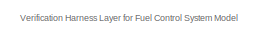
[diagram: root canvas - part 1/2, top left region]
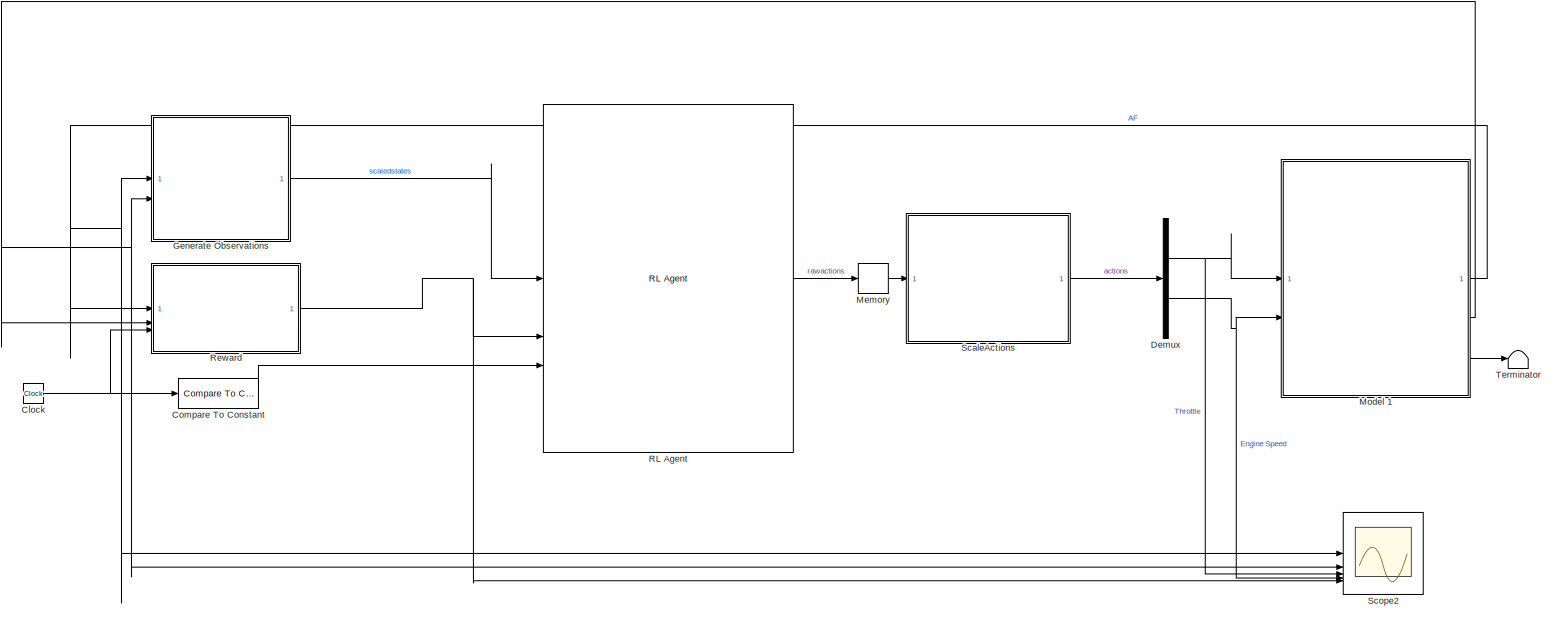
[diagram: root canvas - part 2/2, full width, bottom band]
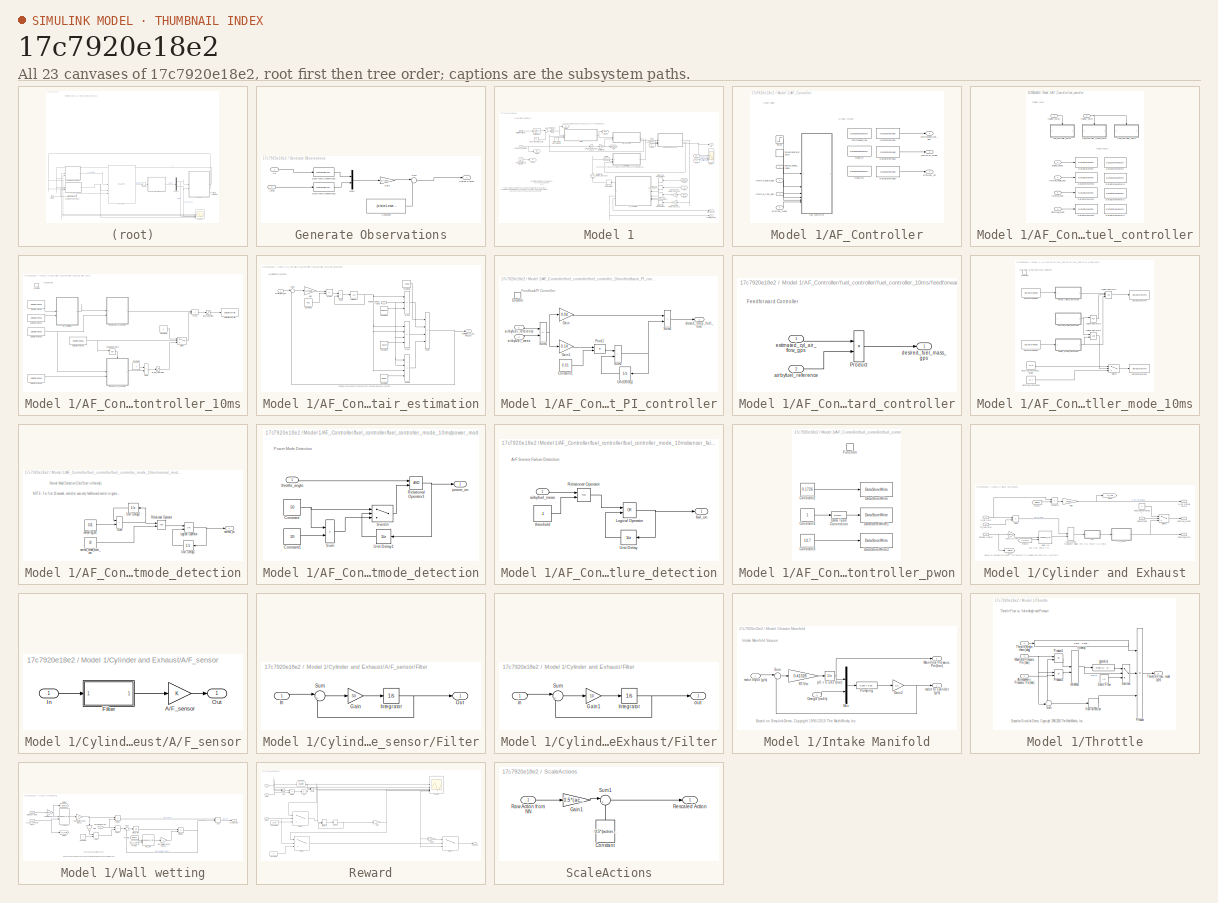
[diagram: thumbnail index - all 23 canvases of the model, root first then tree order]
MODEL slx_17c7920e18e2
KIND model
CONFIG AbsTol = 1e-6
CONFIG EnableMultiTasking = off
CONFIG FixedStep = .00005
CONFIG MaxStep = auto
CONFIG MinStep = auto
CONFIG RelTol = 1e-6
CONFIG SampleTimeConstraint = Unconstrained
CONFIG SolverName = ode15s
CONFIG StartTime = 0.0
CONFIG StopTime = 85
BLOCK [Clock] Clock
BLOCK [Reference] Compare To Constant  REF=simulink/Logic and Bit
Operations/Compare
To Constant
  SourceBlock = simulink/Logic and Bit\nOperations/Compare\nTo Constant
  SourceType = Compare To Constant
BLOCK [Demux] Demux
  Outputs = 2
BLOCK [SubSystem] Generate Observations
BLOCK [Inport] Generate Observations/AF
BLOCK [Inport] Generate Observations/AFref
  Port = 2
BLOCK [Constant] Generate Observations/Constant
  Value = -(stateLowerLimits + stateUpperLimits)./(stateUpperLimits-stateLowerLimits)
BLOCK [DataTypeConversion] Generate Observations/Data Type Conversion2
  OutDataTypeStr = double
  RndMeth = Floor
  SaturateOnIntegerOverflow = off
BLOCK [DataTypeConversion] Generate Observations/Data Type Conversion3
  OutDataTypeStr = double
  RndMeth = Floor
  SaturateOnIntegerOverflow = off
BLOCK [Gain] Generate Observations/Gain
  Gain = 2./(stateUpperLimits-stateLowerLimits)
BLOCK [Mux] Generate Observations/Mux1
  DisplayOption = bar
  Inputs = 2
BLOCK [Outport] Generate Observations/Scaled States
BLOCK [Sum] Generate Observations/Sum
  Inputs = |++
BLOCK [Memory] Memory
  InitialCondition = 1000
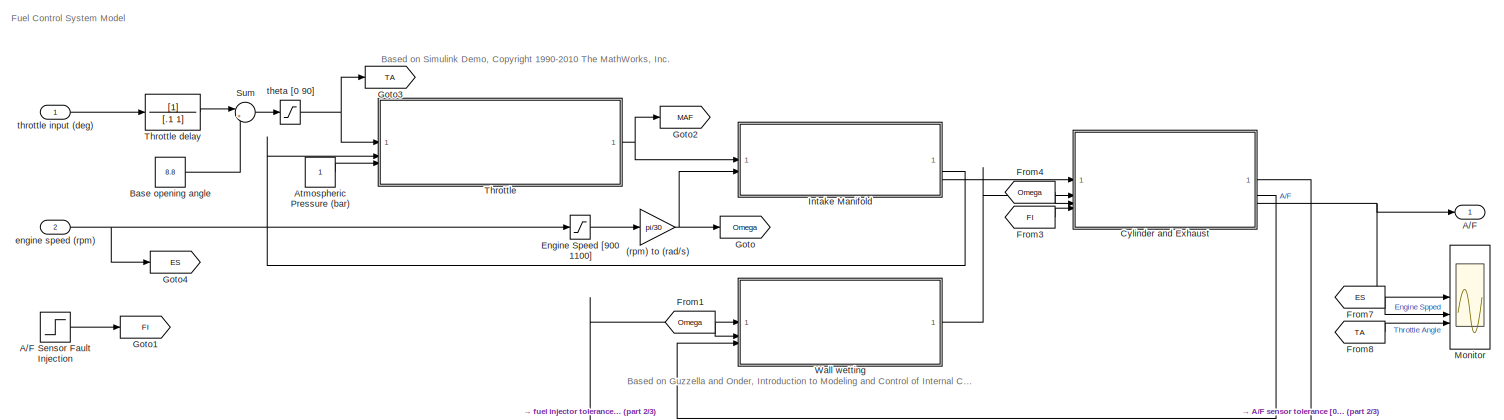
[diagram: Model 1 - part 1/3, full width, top band]
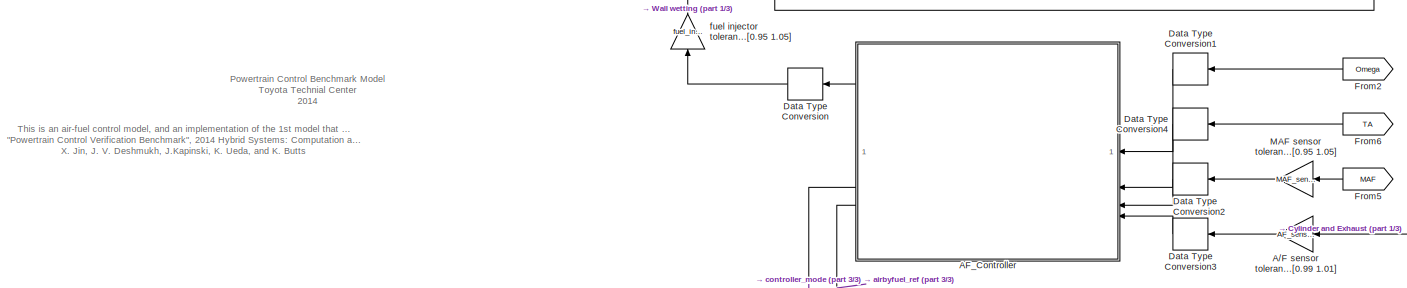
[diagram: Model 1 - part 2/3, full width, bottom band]
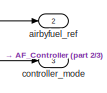
[diagram: Model 1 - part 3/3, bottom right region]
BLOCK [SubSystem] Model 1
  Priority = 1
  TreatAsAtomicUnit = on
BLOCK [Gain] Model 1/(rpm) to (rad//s)
  Gain = pi/30
BLOCK [Outport] Model 1/A//F
BLOCK [Step] Model 1/A//F Sensor Fault Injection
  AttributesFormatString = 1: Failure\n0: Normal
  SampleTime = 0
  Time = fault_time
BLOCK [Gain] Model 1/A//F sensor tolerance [0.99 1.01]
  Gain = AF_sensor_tol
BLOCK [SubSystem] Model 1/AF_Controller
  TreatAsAtomicUnit = on
BLOCK [DataStoreRead] Model 1/AF_Controller/DataStoreRead
  AttributesFormatString = Priority = %<Priority>
  DataStoreName = commanded_fuel
  IndexOptions = Index vector (dialog)
  Indices = 1
  OutputSizes = 1
  Priority = 2
BLOCK [DataStoreRead] Model 1/AF_Controller/DataStoreRead1
  AttributesFormatString = Priority = %<Priority>
  DataStoreName = controller_mode
  IndexOptions = Index vector (dialog)
  Indices = 1
  OutputSizes = 1
  Priority = 2
BLOCK [DataStoreRead] Model 1/AF_Controller/DataStoreRead2
  AttributesFormatString = Priority = %<Priority>
  DataStoreName = airbyfuel_ref
  IndexOptions = Index vector (dialog)
  Indices = 1
  OutputSizes = 1
  Priority = 2
BLOCK [DiscretePulseGenerator] Model 1/AF_Controller/PulseGenerator_10ms
  Period = 0.01
  PhaseDelay = 0.01
  PulseType = Time based
  PulseWidth = 50
BLOCK [Step] Model 1/AF_Controller/Pwon
  SampleTime = 0
  Time = 0.001
BLOCK [Inport] Model 1/AF_Controller/airbyfuel_meas
  Port = 4
  SamplingMode = Sample based
  SignalType = real
BLOCK [Outport] Model 1/AF_Controller/airbyfuel_ref
  Port = 3
  SamplingMode = Sample based
  SignalType = real
BLOCK [DataStoreMemory] Model 1/AF_Controller/commanded_fuel
  AttributesFormatString = commanded_fuel
  DataStoreName = commanded_fuel
  InitialValue = 0.1726
  OutDataTypeStr = single
  ShowAdditionalParam = off
  SignalType = real
BLOCK [Outport] Model 1/AF_Controller/commanded_fuel_gps
  SamplingMode = Sample based
  SignalType = real
BLOCK [Outport] Model 1/AF_Controller/controller_mode
  Port = 2
  SamplingMode = Sample based
  SignalType = real
BLOCK [Inport] Model 1/AF_Controller/engine_speed_radps
  SamplingMode = Sample based
  SignalType = real
BLOCK [SubSystem] Model 1/AF_Controller/fuel_controller
  AttributesFormatString = Priority = %<Priority>
  Priority = 1
  TreatAsAtomicUnit = on
BLOCK [DataStoreMemory] Model 1/AF_Controller/fuel_controller/DataStoreMemory
  AttributesFormatString = engine speed
  DataStoreName = engine_speed
  OutDataTypeStr = single
  ShowAdditionalParam = off
  SignalType = real
BLOCK [DataStoreMemory] Model 1/AF_Controller/fuel_controller/DataStoreMemory1
  AttributesFormatString = throttle flow
  DataStoreName = throttle_flow
  OutDataTypeStr = single
  ShowAdditionalParam = off
  SignalType = real
BLOCK [DataStoreMemory] Model 1/AF_Controller/fuel_controller/DataStoreMemory2
  AttributesFormatString = lambda_meas
  DataStoreName = airbyfuel_meas
  OutDataTypeStr = single
  ShowAdditionalParam = off
  SignalType = real
BLOCK [DataStoreMemory] Model 1/AF_Controller/fuel_controller/DataStoreMemory3
  AttributesFormatString = throttle flow
  DataStoreName = throttle_angle
  OutDataTypeStr = single
  ShowAdditionalParam = off
  SignalType = real
BLOCK [DataStoreWrite] Model 1/AF_Controller/fuel_controller/DataStoreWrite
  AttributesFormatString = Priority = %<Priority>
  DataStoreName = engine_speed
  IndexOptions = Index vector (dialog)
  Indices = 1
  OutputSizes = 1
  Priority = 1
BLOCK [DataStoreWrite] Model 1/AF_Controller/fuel_controller/DataStoreWrite1
  AttributesFormatString = Priority = %<Priority>
  DataStoreName = throttle_flow
  IndexOptions = Index vector (dialog)
  Indices = 1
  OutputSizes = 1
  Priority = 1
BLOCK [DataStoreWrite] Model 1/AF_Controller/fuel_controller/DataStoreWrite2
  AttributesFormatString = Priority = %<Priority>
  DataStoreName = airbyfuel_meas
  IndexOptions = Index vector (dialog)
  Indices = 1
  OutputSizes = 1
  Priority = 1
BLOCK [DataStoreWrite] Model 1/AF_Controller/fuel_controller/DataStoreWrite3
  AttributesFormatString = Priority = %<Priority>
  DataStoreName = throttle_angle
  IndexOptions = Index vector (dialog)
  Indices = 1
  OutputSizes = 1
  Priority = 1
BLOCK [Inport] Model 1/AF_Controller/fuel_controller/airbyfuel_meas
  Port = 6
  SamplingMode = Sample based
  SignalType = real
BLOCK [Inport] Model 1/AF_Controller/fuel_controller/engine_speed
  Port = 3
  SamplingMode = Sample based
  SignalType = real
BLOCK [SubSystem] Model 1/AF_Controller/fuel_controller/fuel_controller_10ms
  AttributesFormatString = Priority = %<Priority>
  Priority = 30
  TreatAsAtomicUnit = on
BLOCK [Constant] Model 1/AF_Controller/fuel_controller/fuel_controller_10ms/Constant2
  OutDataTypeStr = single
BLOCK [Constant] Model 1/AF_Controller/fuel_controller/fuel_controller_10ms/Constant3
  OutDataTypeStr = single
BLOCK [DataStoreRead] Model 1/AF_Controller/fuel_controller/fuel_controller_10ms/DataStoreRead
  DataStoreName = throttle_flow
  IndexOptions = Index vector (dialog)
  Indices = 1
  OutputSizes = 1
BLOCK [DataStoreRead] Model 1/AF_Controller/fuel_controller/fuel_controller_10ms/DataStoreRead1
  DataStoreName = engine_speed
  IndexOptions = Index vector (dialog)
  Indices = 1
  OutputSizes = 1
BLOCK [DataStoreRead] Model 1/AF_Controller/fuel_controller/fuel_controller_10ms/DataStoreRead2
  DataStoreName = airbyfuel_meas
  IndexOptions = Index vector (dialog)
  Indices = 1
  OutputSizes = 1
BLOCK [DataStoreRead] Model 1/AF_Controller/fuel_controller/fuel_controller_10ms/DataStoreRead3
  AttributesFormatString = 1: Feedforward\n0: Feedforward + Feedback
  DataStoreName = controller_mode
  IndexOptions = Index vector (dialog)
  Indices = 1
  OutputSizes = 1
BLOCK [DataStoreRead] Model 1/AF_Controller/fuel_controller/fuel_controller_10ms/DataStoreRead4
  DataStoreName = airbyfuel_ref
  IndexOptions = Index vector (dialog)
  Indices = 1
  OutputSizes = 1
BLOCK [DataStoreWrite] Model 1/AF_Controller/fuel_controller/fuel_controller_10ms/DataStoreWrite
  DataStoreName = commanded_fuel
  IndexOptions = Index vector (dialog)
  Indices = 1
  OutputSizes = 1
BLOCK [TriggerPort] Model 1/AF_Controller/fuel_controller/fuel_controller_10ms/Function
  StatesWhenEnabling = held
  VariantControl = (inherit)
BLOCK [Logic] Model 1/AF_Controller/fuel_controller/fuel_controller_10ms/Logical Operator2
  AllPortsSameDT = off
  Operator = NOT
  OutDataTypeStr = boolean
BLOCK [Product] Model 1/AF_Controller/fuel_controller/fuel_controller_10ms/Prod1
  OutDataTypeStr = Inherit: Inherit via back propagation
  RndMeth = Simplest
BLOCK [Sum] Model 1/AF_Controller/fuel_controller/fuel_controller_10ms/Sum1
  IconShape = rectangular
  InputSameDT = on
  OutDataTypeStr = Inherit: Inherit via back propagation
  RndMeth = Simplest
BLOCK [Switch] Model 1/AF_Controller/fuel_controller/fuel_controller_10ms/Switch
  Criteria = u2 ~= 0
  InputSameDT = off
  SaturateOnIntegerOverflow = off
  Threshold = 0.5
BLOCK [SubSystem] Model 1/AF_Controller/fuel_controller/fuel_controller_10ms/air_estimation
  TreatAsAtomicUnit = on
BLOCK [Constant] Model 1/AF_Controller/fuel_controller/fuel_controller_10ms/air_estimation/Constant1
  AttributesFormatString = Sample Time (s)
  OutDataTypeStr = single
  SampleTime = -1
  UserDataPersistent = on
  Value = 0.01
BLOCK [Constant] Model 1/AF_Controller/fuel_controller/fuel_controller_10ms/air_estimation/Constant2
  OutDataTypeStr = single
  SampleTime = -1
  UserDataPersistent = on
  Value = -0.366
BLOCK [Constant] Model 1/AF_Controller/fuel_controller/fuel_controller_10ms/air_estimation/Constant3
  OutDataTypeStr = single
  SampleTime = -1
  UserDataPersistent = on
  Value = 0.08979
BLOCK [Constant] Model 1/AF_Controller/fuel_controller/fuel_controller_10ms/air_estimation/Constant4
  OutDataTypeStr = single
  SampleTime = -1
  UserDataPersistent = on
  Value = -0.0337
BLOCK [Constant] Model 1/AF_Controller/fuel_controller/fuel_controller_10ms/air_estimation/Constant5
  OutDataTypeStr = single
  SampleTime = -1
  UserDataPersistent = on
  Value = 0.0001
BLOCK [Gain] Model 1/AF_Controller/fuel_controller/fuel_controller_10ms/air_estimation/Gain
  AttributesFormatString = RT/Vm
  Gain = 0.41328
  OutDataTypeStr = Inherit: Inherit via back propagation
  ParamDataTypeStr = single
  RndMeth = Simplest
  SaturateOnIntegerOverflow = on
  UserDataPersistent = on
BLOCK [Product] Model 1/AF_Controller/fuel_controller/fuel_controller_10ms/air_estimation/Prod1
  OutDataTypeStr = Inherit: Inherit via back propagation
  RndMeth = Simplest
BLOCK [Product] Model 1/AF_Controller/fuel_controller/fuel_controller_10ms/air_estimation/Prod2
  Inputs = 3
  OutDataTypeStr = Inherit: Inherit via back propagation
  RndMeth = Simplest
BLOCK [Product] Model 1/AF_Controller/fuel_controller/fuel_controller_10ms/air_estimation/Prod3
  Inputs = 4
  OutDataTypeStr = Inherit: Inherit via back propagation
  RndMeth = Simplest
BLOCK [Product] Model 1/AF_Controller/fuel_controller/fuel_controller_10ms/air_estimation/Prod4
  Inputs = 4
  OutDataTypeStr = Inherit: Inherit via back propagation
  RndMeth = Simplest
BLOCK [Sum] Model 1/AF_Controller/fuel_controller/fuel_controller_10ms/air_estimation/Sum1
  InputSameDT = on
  Inputs = |+-
  OutDataTypeStr = Inherit: Inherit via back propagation
  RndMeth = Simplest
BLOCK [Sum] Model 1/AF_Controller/fuel_controller/fuel_controller_10ms/air_estimation/Sum2
  IconShape = rectangular
  InputSameDT = on
  OutDataTypeStr = Inherit: Inherit via back propagation
  RndMeth = Simplest
BLOCK [Sum] Model 1/AF_Controller/fuel_controller/fuel_controller_10ms/air_estimation/Sum3
  IconShape = rectangular
  InputSameDT = on
  Inputs = ++++
  OutDataTypeStr = Inherit: Inherit via back propagation
  RndMeth = Simplest
BLOCK [UnitDelay] Model 1/AF_Controller/fuel_controller/fuel_controller_10ms/air_estimation/UnitDelay1
  AttributesFormatString = p0 = %<InitialCondition> (bar)
  HasFrameUpgradeWarning = on
  InitialCondition = 0.982
  SampleTime = -1
  UserDataPersistent = on
BLOCK [Inport] Model 1/AF_Controller/fuel_controller/fuel_controller_10ms/air_estimation/engine_speed_radps
  Port = 2
  SamplingMode = Sample based
  SignalType = real
BLOCK [Outport] Model 1/AF_Controller/fuel_controller/fuel_controller_10ms/air_estimation/estimated_cyl_air_flow_gps
  SamplingMode = Sample based
  SignalType = real
BLOCK [Inport] Model 1/AF_Controller/fuel_controller/fuel_controller_10ms/air_estimation/throttle_flow_gps
  SamplingMode = Sample based
  SignalType = real
BLOCK [Saturate] Model 1/AF_Controller/fuel_controller/fuel_controller_10ms/fb_fuel_saturation
  AttributesFormatString = y >= 0
  LowerLimit = 0
  RndMeth = Round
  UpperLimit = inf
BLOCK [SubSystem] Model 1/AF_Controller/fuel_controller/fuel_controller_10ms/feedback_PI_controller
  TreatAsAtomicUnit = on
BLOCK [Constant] Model 1/AF_Controller/fuel_controller/fuel_controller_10ms/feedback_PI_controller/Constant1
  AttributesFormatString = Sample Time [s]
  OutDataTypeStr = single
  SampleTime = -1
  UserDataPersistent = on
  Value = 0.01
BLOCK [EnablePort] Model 1/AF_Controller/fuel_controller/fuel_controller_10ms/feedback_PI_controller/Enable
BLOCK [Gain] Model 1/AF_Controller/fuel_controller/fuel_controller_10ms/feedback_PI_controller/Gain
  AttributesFormatString = Proportional Gain
  Gain = 0.04
  OutDataTypeStr = Inherit: Inherit via back propagation
  ParamDataTypeStr = single
  RndMeth = Simplest
  SaturateOnIntegerOverflow = on
  UserDataPersistent = on
BLOCK [Gain] Model 1/AF_Controller/fuel_controller/fuel_controller_10ms/feedback_PI_controller/Gain1
  AttributesFormatString = Integral Gain
  Gain = 0.14
  OutDataTypeStr = Inherit: Inherit via back propagation
  ParamDataTypeStr = single
  RndMeth = Simplest
  SaturateOnIntegerOverflow = on
  UserDataPersistent = on
BLOCK [Product] Model 1/AF_Controller/fuel_controller/fuel_controller_10ms/feedback_PI_controller/Prod1
  OutDataTypeStr = Inherit: Inherit via back propagation
  RndMeth = Simplest
BLOCK [Sum] Model 1/AF_Controller/fuel_controller/fuel_controller_10ms/feedback_PI_controller/Sum1
  IconShape = rectangular
  InputSameDT = on
  Inputs = -+
  OutDataTypeStr = Inherit: Inherit via back propagation
  RndMeth = Simplest
BLOCK [Sum] Model 1/AF_Controller/fuel_controller/fuel_controller_10ms/feedback_PI_controller/Sum2
  IconShape = rectangular
  InputSameDT = on
  OutDataTypeStr = Inherit: Inherit via back propagation
  RndMeth = Simplest
BLOCK [Sum] Model 1/AF_Controller/fuel_controller/fuel_controller_10ms/feedback_PI_controller/Sum3
  IconShape = rectangular
  InputSameDT = on
  OutDataTypeStr = Inherit: Inherit via back propagation
  RndMeth = Simplest
BLOCK [UnitDelay] Model 1/AF_Controller/fuel_controller/fuel_controller_10ms/feedback_PI_controller/UnitDelay1
  AttributesFormatString = Initial Value = 0
  HasFrameUpgradeWarning = on
  SampleTime = -1
  UserDataPersistent = on
BLOCK [Inport] Model 1/AF_Controller/fuel_controller/fuel_controller_10ms/feedback_PI_controller/airbyfuel_meas
  Port = 2
  SamplingMode = Sample based
  SignalType = real
BLOCK [Inport] Model 1/AF_Controller/fuel_controller/fuel_controller_10ms/feedback_PI_controller/airbyfuel_reference
  SamplingMode = Sample based
  SignalType = real
BLOCK [Outport] Model 1/AF_Controller/fuel_controller/fuel_controller_10ms/feedback_PI_controller/closed_loop_fuel_trim
  SamplingMode = Sample based
  SignalType = real
BLOCK [SubSystem] Model 1/AF_Controller/fuel_controller/fuel_controller_10ms/feedforward_controller
  TreatAsAtomicUnit = on
BLOCK [Product] Model 1/AF_Controller/fuel_controller/fuel_controller_10ms/feedforward_controller/Product
  Inputs = */
  OutDataTypeStr = Inherit: Same as first input
  RndMeth = Simplest
  SaturateOnIntegerOverflow = on
BLOCK [Inport] Model 1/AF_Controller/fuel_controller/fuel_controller_10ms/feedforward_controller/airbyfuel_reference
  Port = 2
  SamplingMode = Sample based
  SignalType = real
BLOCK [Outport] Model 1/AF_Controller/fuel_controller/fuel_controller_10ms/feedforward_controller/desired_fuel_mass_gps
  SamplingMode = Sample based
  SignalType = real
BLOCK [Inport] Model 1/AF_Controller/fuel_controller/fuel_controller_10ms/feedforward_controller/estimated_cyl_air_flow_gps
  SamplingMode = Sample based
  SignalType = real
BLOCK [Saturate] Model 1/AF_Controller/fuel_controller/fuel_controller_10ms/fuel_saturation
  AttributesFormatString = 0.13 <=\ncommanded_fuel\n<= 1.66
  LowerLimit = 0.13
  RndMeth = Round
  UpperLimit = 1.66
BLOCK [SubSystem] Model 1/AF_Controller/fuel_controller/fuel_controller_mode_10ms
  AttributesFormatString = Priority = %<Priority>
  Priority = 20
  TreatAsAtomicUnit = on
BLOCK [DataStoreRead] Model 1/AF_Controller/fuel_controller/fuel_controller_mode_10ms/DataStoreRead2
  DataStoreName = airbyfuel_meas
  IndexOptions = Index vector (dialog)
  Indices = 1
  OutputSizes = 1
BLOCK [DataStoreRead] Model 1/AF_Controller/fuel_controller/fuel_controller_mode_10ms/DataStoreRead4
  DataStoreName = throttle_angle
  IndexOptions = Index vector (dialog)
  Indices = 1
  OutputSizes = 1
BLOCK [DataStoreWrite] Model 1/AF_Controller/fuel_controller/fuel_controller_mode_10ms/DataStoreWrite
  AttributesFormatString = 1: Feedforward\n0: Feedforward + Feedback
  DataStoreName = controller_mode
  IndexOptions = Index vector (dialog)
  Indices = 1
  OutputSizes = 1
BLOCK [DataStoreWrite] Model 1/AF_Controller/fuel_controller/fuel_controller_mode_10ms/DataStoreWrite1
  DataStoreName = airbyfuel_ref
  IndexOptions = Index vector (dialog)
  Indices = 1
  OutputSizes = 1
BLOCK [TriggerPort] Model 1/AF_Controller/fuel_controller/fuel_controller_mode_10ms/Function
  StatesWhenEnabling = held
  VariantControl = (inherit)
BLOCK [Logic] Model 1/AF_Controller/fuel_controller/fuel_controller_mode_10ms/Logical Operator1
  AllPortsSameDT = off
  Inputs = 3
  Operator = OR
  OutDataTypeStr = boolean
BLOCK [Logic] Model 1/AF_Controller/fuel_controller/fuel_controller_mode_10ms/Logical Operator2
  AllPortsSameDT = off
  Operator = NOT
  OutDataTypeStr = boolean
BLOCK [Logic] Model 1/AF_Controller/fuel_controller/fuel_controller_mode_10ms/Logical Operator3
  AllPortsSameDT = off
  OutDataTypeStr = boolean
BLOCK [Switch] Model 1/AF_Controller/fuel_controller/fuel_controller_mode_10ms/Switch
  Criteria = u2 ~= 0
  InputSameDT = off
  SaturateOnIntegerOverflow = off
BLOCK [Constant] Model 1/AF_Controller/fuel_controller/fuel_controller_mode_10ms/airbyfuel_reference
  OutDataTypeStr = single
  SampleTime = -1
  UserDataPersistent = on
  Value = 14.7
BLOCK [Constant] Model 1/AF_Controller/fuel_controller/fuel_controller_mode_10ms/airbyfuel_reference_power
  OutDataTypeStr = single
  SampleTime = -1
  UserDataPersistent = on
  Value = 12.5
BLOCK [SubSystem] Model 1/AF_Controller/fuel_controller/fuel_controller_mode_10ms/normal_mode_detection
  AttributesFormatString = 0: Feedforward\n1: Feedforward + Feedback
  TreatAsAtomicUnit = on
BLOCK [Logic] Model 1/AF_Controller/fuel_controller/fuel_controller_mode_10ms/normal_mode_detection/Logical Operator
  Operator = OR
  OutDataTypeStr = boolean
BLOCK [RelationalOperator] Model 1/AF_Controller/fuel_controller/fuel_controller_mode_10ms/normal_mode_detection/Relational Operator
  InputSameDT = off
  OutDataTypeStr = boolean
BLOCK [Sum] Model 1/AF_Controller/fuel_controller/fuel_controller_mode_10ms/normal_mode_detection/Sum
  IconShape = rectangular
BLOCK [UnitDelay] Model 1/AF_Controller/fuel_controller/fuel_controller_mode_10ms/normal_mode_detection/Unit Delay1
  AttributesFormatString = Initial Value = 0
  HasFrameUpgradeWarning = on
  SampleTime = -1
BLOCK [UnitDelay] Model 1/AF_Controller/fuel_controller/fuel_controller_mode_10ms/normal_mode_detection/Unit Delay2
  AttributesFormatString = Initial Value = 0
  HasFrameUpgradeWarning = on
  SampleTime = -1
BLOCK [Constant] Model 1/AF_Controller/fuel_controller/fuel_controller_mode_10ms/normal_mode_detection/normal_mode_start_sec
  AttributesFormatString = Normal Mode Start Time (s)
  OutDataTypeStr = single
  SampleTime = -1
  UserDataPersistent = on
  Value = 10
BLOCK [Outport] Model 1/AF_Controller/fuel_controller/fuel_controller_mode_10ms/normal_mode_detection/normal_on
BLOCK [Constant] Model 1/AF_Controller/fuel_controller/fuel_controller_mode_10ms/normal_mode_detection/sampling_sec
  AttributesFormatString = Sample Time (s)
  OutDataTypeStr = single
  SampleTime = -1
  UserDataPersistent = on
  Value = 0.01
BLOCK [SubSystem] Model 1/AF_Controller/fuel_controller/fuel_controller_mode_10ms/power_mode_detection
  AttributesFormatString = 1: Feedforward\n0: Feedforward + Feedback
  TreatAsAtomicUnit = on
BLOCK [Constant] Model 1/AF_Controller/fuel_controller/fuel_controller_mode_10ms/power_mode_detection/Constant
  AttributesFormatString = Base
  OutDataTypeStr = single
  Value = 50
BLOCK [Constant] Model 1/AF_Controller/fuel_controller/fuel_controller_mode_10ms/power_mode_detection/Constant1
  AttributesFormatString = Hysteresis
  OutDataTypeStr = single
  Value = 20
BLOCK [RelationalOperator] Model 1/AF_Controller/fuel_controller/fuel_controller_mode_10ms/power_mode_detection/Relational Operator1
  InputSameDT = off
  OutDataTypeStr = boolean
BLOCK [Sum] Model 1/AF_Controller/fuel_controller/fuel_controller_mode_10ms/power_mode_detection/Sum
  IconShape = rectangular
BLOCK [Switch] Model 1/AF_Controller/fuel_controller/fuel_controller_mode_10ms/power_mode_detection/Switch
  Criteria = u2 ~= 0
  InputSameDT = off
  SaturateOnIntegerOverflow = off
BLOCK [UnitDelay] Model 1/AF_Controller/fuel_controller/fuel_controller_mode_10ms/power_mode_detection/Unit Delay1
  AttributesFormatString = Initial Value = 0
  HasFrameUpgradeWarning = on
  SampleTime = -1
BLOCK [Outport] Model 1/AF_Controller/fuel_controller/fuel_controller_mode_10ms/power_mode_detection/power_on
BLOCK [Inport] Model 1/AF_Controller/fuel_controller/fuel_controller_mode_10ms/power_mode_detection/throttle_angle
BLOCK [SubSystem] Model 1/AF_Controller/fuel_controller/fuel_controller_mode_10ms/sensor_failure_detection
  AttributesFormatString = 1: Feedforward\n0: Feedforward + Feedback
  TreatAsAtomicUnit = on
BLOCK [Logic] Model 1/AF_Controller/fuel_controller/fuel_controller_mode_10ms/sensor_failure_detection/Logical Operator
  Operator = OR
  OutDataTypeStr = boolean
BLOCK [RelationalOperator] Model 1/AF_Controller/fuel_controller/fuel_controller_mode_10ms/sensor_failure_detection/Relational Operator
  InputSameDT = off
  Operator = <=
  OutDataTypeStr = boolean
BLOCK [UnitDelay] Model 1/AF_Controller/fuel_controller/fuel_controller_mode_10ms/sensor_failure_detection/Unit Delay
  AttributesFormatString = Initial Value = 0
  HasFrameUpgradeWarning = on
  SampleTime = -1
BLOCK [Inport] Model 1/AF_Controller/fuel_controller/fuel_controller_mode_10ms/sensor_failure_detection/airbyfuel_meas
BLOCK [Outport] Model 1/AF_Controller/fuel_controller/fuel_controller_mode_10ms/sensor_failure_detection/fail_on
BLOCK [Constant] Model 1/AF_Controller/fuel_controller/fuel_controller_mode_10ms/sensor_failure_detection/threshold
  OutDataTypeStr = single
  Value = -1
BLOCK [SubSystem] Model 1/AF_Controller/fuel_controller/fuel_controller_pwon
  AttributesFormatString = Priority = %<Priority>
  Priority = 10
  TreatAsAtomicUnit = on
BLOCK [Constant] Model 1/AF_Controller/fuel_controller/fuel_controller_pwon/Constant1
  OutDataTypeStr = single
  SampleTime = -1
  UserDataPersistent = on
BLOCK [Constant] Model 1/AF_Controller/fuel_controller/fuel_controller_pwon/Constant2
  OutDataTypeStr = single
  SampleTime = -1
  UserDataPersistent = on
  Value = 0.1726
BLOCK [Constant] Model 1/AF_Controller/fuel_controller/fuel_controller_pwon/Constant3
  OutDataTypeStr = single
  SampleTime = -1
  UserDataPersistent = on
  Value = 14.7
BLOCK [DataTypeConversion] Model 1/AF_Controller/fuel_controller/fuel_controller_pwon/Data Type Conversion
  OutDataTypeStr = boolean
  RndMeth = Floor
  SaturateOnIntegerOverflow = off
BLOCK [DataStoreWrite] Model 1/AF_Controller/fuel_controller/fuel_controller_pwon/DataStoreWrite
  DataStoreName = commanded_fuel
  IndexOptions = Index vector (dialog)
  Indices = 1
  OutputSizes = 1
BLOCK [DataStoreWrite] Model 1/AF_Controller/fuel_controller/fuel_controller_pwon/DataStoreWrite1
  DataStoreName = controller_mode
  IndexOptions = Index vector (dialog)
  Indices = 1
  OutputSizes = 1
BLOCK [DataStoreWrite] Model 1/AF_Controller/fuel_controller/fuel_controller_pwon/DataStoreWrite2
  DataStoreName = airbyfuel_ref
  IndexOptions = Index vector (dialog)
  Indices = 1
  OutputSizes = 1
BLOCK [TriggerPort] Model 1/AF_Controller/fuel_controller/fuel_controller_pwon/Function
  StatesWhenEnabling = held
  VariantControl = (inherit)
BLOCK [Inport] Model 1/AF_Controller/fuel_controller/throttle_angle_deg
  Port = 4
  SamplingMode = Sample based
  SignalType = real
BLOCK [Inport] Model 1/AF_Controller/fuel_controller/throttle_flow
  Port = 5
  SamplingMode = Sample based
  SignalType = real
BLOCK [Inport] Model 1/AF_Controller/fuel_controller/trigger_10ms
  Port = 2
  SamplingMode = Sample based
  SignalType = real
BLOCK [Inport] Model 1/AF_Controller/fuel_controller/trigger_pwon
  SamplingMode = Sample based
  SignalType = real
BLOCK [DataStoreMemory] Model 1/AF_Controller/mode_fb
  AttributesFormatString = controller_mode
  DataStoreName = controller_mode
  OutDataTypeStr = boolean
  ShowAdditionalParam = off
  SignalType = real
BLOCK [DataStoreMemory] Model 1/AF_Controller/mode_fb1
  AttributesFormatString = airbyfuel_reference
  DataStoreName = airbyfuel_ref
  OutDataTypeStr = single
  ShowAdditionalParam = off
  SignalType = real
BLOCK [Inport] Model 1/AF_Controller/throttle_angle_deg
  Port = 2
  SamplingMode = Sample based
  SignalType = real
BLOCK [Inport] Model 1/AF_Controller/throttle_flow_gps
  Port = 3
  SamplingMode = Sample based
  SignalType = real
BLOCK [Constant] Model 1/Atmospheric Pressure (bar)
BLOCK [Constant] Model 1/Base opening angle
  Value = 8.8
BLOCK [SubSystem] Model 1/Cylinder and Exhaust
BLOCK [SubSystem] Model 1/Cylinder and Exhaust/A//F_sensor
BLOCK [Gain] Model 1/Cylinder and Exhaust/A//F_sensor/A//F_sensor
  OutDataTypeStr = double
BLOCK [SubSystem] Model 1/Cylinder and Exhaust/A//F_sensor/Filter
BLOCK [Gain] Model 1/Cylinder and Exhaust/A//F_sensor/Filter/Gain
  Gain = 50
BLOCK [Inport] Model 1/Cylinder and Exhaust/A//F_sensor/Filter/In
BLOCK [Integrator] Model 1/Cylinder and Exhaust/A//F_sensor/Filter/Integrator
  InitialCondition = 14.7
BLOCK [Outport] Model 1/Cylinder and Exhaust/A//F_sensor/Filter/Out
BLOCK [Sum] Model 1/Cylinder and Exhaust/A//F_sensor/Filter/Sum
  Inputs = |+-
BLOCK [Inport] Model 1/Cylinder and Exhaust/A//F_sensor/In
BLOCK [Outport] Model 1/Cylinder and Exhaust/A//F_sensor/Out
BLOCK [Product] Model 1/Cylinder and Exhaust/Divide
  Inputs = */
BLOCK [Constant] Model 1/Cylinder and Exhaust/FaultySensorOutput
  Value = -1
BLOCK [SubSystem] Model 1/Cylinder and Exhaust/Filter
BLOCK [Gain] Model 1/Cylinder and Exhaust/Filter/Gain1
  Gain = 10
BLOCK [Integrator] Model 1/Cylinder and Exhaust/Filter/Integrator
  InitialCondition = 14.7
BLOCK [Sum] Model 1/Cylinder and Exhaust/Filter/Sum
  Inputs = |+-
BLOCK [Inport] Model 1/Cylinder and Exhaust/Filter/in
BLOCK [Outport] Model 1/Cylinder and Exhaust/Filter/out
BLOCK [From] Model 1/Cylinder and Exhaust/From1
  GotoTag = Omega
BLOCK [From] Model 1/Cylinder and Exhaust/From3
  GotoTag = cyl_chrg
BLOCK [Gain] Model 1/Cylinder and Exhaust/Gain
  Gain = 4*pi/4
BLOCK [Goto] Model 1/Cylinder and Exhaust/Goto
  GotoTag = cyl_chrg
BLOCK [Goto] Model 1/Cylinder and Exhaust/Goto1
  GotoTag = Omega
BLOCK [Inport] Model 1/Cylinder and Exhaust/Omega (rad//s)
  Port = 3
BLOCK [Product] Model 1/Cylinder and Exhaust/Product1
  Inputs = */
  RndMeth = Zero
BLOCK [Inport] Model 1/Cylinder and Exhaust/SensorFault
  Port = 4
BLOCK [Switch] Model 1/Cylinder and Exhaust/Switch
  InputSameDT = off
  SaturateOnIntegerOverflow = off
  Threshold = 0.5
BLOCK [Outport] Model 1/Cylinder and Exhaust/airbyfue_meas
BLOCK [Outport] Model 1/Cylinder and Exhaust/airbyfuel_mon 
  Port = 3
BLOCK [Inport] Model 1/Cylinder and Exhaust/cyl_air (g//s)
BLOCK [Outport] Model 1/Cylinder and Exhaust/cyl_air_charge (g//cyl)
  Port = 2
BLOCK [Inport] Model 1/Cylinder and Exhaust/cyl_fuel (g//s)
  Port = 2
BLOCK [Lookup_n-D] Model 1/Cylinder and Exhaust/delay (s)
  BreakpointsForDimension1 = [800,1000,1500,2000,3000]
  BreakpointsForDimension2 = [0.05,0.15,0.2,0.25]
  InputPortMap = u0,u1
  RndMeth = Simplest
  Table = reshape([0.8,0.6,0.4,0.3,0.2,0.4,0.3,0.2,0.2,0.2,0.3,0.25,0.2,0.2,0.2,0.25,0.2,0.2,0.2,0.2],5,4)
  UseLastTableValue = on
BLOCK [VariableTransportDelay] Model 1/Cylinder and Exhaust/fuel system transport delay
  InitialOutput = 14.7
  MaximumDelay = 10
  MaximumPoints = 20480
  VariableDelayType = Variable transport delay
BLOCK [Gain] Model 1/Cylinder and Exhaust/rad//s to rpm
  Gain = 60/(2*pi)
BLOCK [DataTypeConversion] Model 1/Data Type Conversion
  OutDataTypeStr = double
  RndMeth = Floor
  SaturateOnIntegerOverflow = off
BLOCK [DataTypeConversion] Model 1/Data Type Conversion1
  OutDataTypeStr = single
  RndMeth = Floor
  SaturateOnIntegerOverflow = off
BLOCK [DataTypeConversion] Model 1/Data Type Conversion2
  OutDataTypeStr = single
  RndMeth = Floor
  SaturateOnIntegerOverflow = off
BLOCK [DataTypeConversion] Model 1/Data Type Conversion3
  OutDataTypeStr = single
  RndMeth = Floor
  SaturateOnIntegerOverflow = off
BLOCK [DataTypeConversion] Model 1/Data Type Conversion4
  OutDataTypeStr = single
  RndMeth = Floor
  SaturateOnIntegerOverflow = off
BLOCK [Saturate] Model 1/Engine Speed [900 1100]
  LowerLimit = 900
  NameLocation = top
  UpperLimit = 1100
BLOCK [From] Model 1/From1
  GotoTag = Omega
BLOCK [From] Model 1/From2
  GotoTag = Omega
  NameLocation = top
BLOCK [From] Model 1/From3
  GotoTag = FI
BLOCK [From] Model 1/From4
  GotoTag = Omega
BLOCK [From] Model 1/From5
  GotoTag = MAF
  NameLocation = top
BLOCK [From] Model 1/From6
  GotoTag = TA
  NameLocation = top
BLOCK [From] Model 1/From7
  GotoTag = ES
BLOCK [From] Model 1/From8
  GotoTag = TA
BLOCK [Goto] Model 1/Goto
  GotoTag = Omega
BLOCK [Goto] Model 1/Goto1
  GotoTag = FI
BLOCK [Goto] Model 1/Goto2
  GotoTag = MAF
BLOCK [Goto] Model 1/Goto3
  GotoTag = TA
BLOCK [Goto] Model 1/Goto4
  GotoTag = ES
BLOCK [SubSystem] Model 1/Intake Manifold
BLOCK [Gain] Model 1/Intake Manifold/Gain2
  AttributesFormatString = pumping tolerance [0.9 1.1]
  Gain = 0.9
  OutDataTypeStr = Inherit: Inherit via back propagation
  ParamDataTypeStr = single
  RndMeth = Simplest
  SaturateOnIntegerOverflow = on
  UserDataPersistent = on
BLOCK [Outport] Model 1/Intake Manifold/Manifold Pressure, Pm (bar)
  InitialOutput = 0
  Port = 2
BLOCK [Mux] Model 1/Intake Manifold/Mux
  DisplayOption = bar
  Inputs = 2
BLOCK [Inport] Model 1/Intake Manifold/Omega (rad//s)
  Port = 2
BLOCK [Fcn] Model 1/Intake Manifold/Pumping
  Expr = -0.366 + 0.08979*u[1]*u[2] - 0.0337*u[2]*u[1]*u[1] + 0.0001*u[1]*u[2]*u[2]
BLOCK [Gain] Model 1/Intake Manifold/RT//Vm
  Gain = 0.41328
  OutDataTypeStr = Inherit: Same as input
  ParamDataTypeStr = Inherit: Same as input
  SaturateOnIntegerOverflow = on
BLOCK [Sum] Model 1/Intake Manifold/Sum
  InputSameDT = on
  Inputs = |+-
  OutDataTypeStr = Inherit: Same as first input
  SaturateOnIntegerOverflow = on
BLOCK [Inport] Model 1/Intake Manifold/mdot Input (g//s)
BLOCK [Outport] Model 1/Intake Manifold/mdot to Cylinder (g//s)
  InitialOutput = 0
BLOCK [Integrator] Model 1/Intake Manifold/p0 = 0.543 (bar)
  InitialCondition = 0.982
BLOCK [Gain] Model 1/MAF sensor tolerance [0.95 1.05]
  Gain = MAF_sensor_tol
BLOCK [Scope] Model 1/Monitor
  Floating = off
  NumInputPorts = 3
  ScopeSpecificationString = C++SS(StrPVP('Location','[632, 844, 1857, 1468]'),StrPVP('Open','off'),StrPVP('ZoomMode','xonly'),MxPVP('AxesTitles',54,'struct(''axes1'',''%<SignalLabel>'',''axes2'',''%<SignalLabel>'',''axes3'',''%<SignalLabel>'')'),MxPVP('ScopeGraphics',57,'struct(''FigureColor'',''[0.5 0.5 0.5]'',''AxesColor'',''[0 0 0]'',''AxesTickColor'',''[1 1 1]'',''LineColors'',''[1 1 0;1 0 1;0 1 1;1 0 0;0 1 0;0 0 1]'',''...<+419ch>
BLOCK [Sum] Model 1/Sum
  Inputs = |++
BLOCK [SubSystem] Model 1/Throttle
BLOCK [TransferFcn] Model 1/Throttle delay
  Denominator = [.1 1]
BLOCK [Inport] Model 1/Throttle/Atmospheric Pressure, Pa (bar) 
  Port = 3
BLOCK [Inport] Model 1/Throttle/Manifold Pressure, Pm (bar)
  Port = 2
BLOCK [MinMax] Model 1/Throttle/MinMax
  InputSameDT = on
  Inputs = 2
  SaturateOnIntegerOverflow = on
BLOCK [Product] Model 1/Throttle/Product
  InputSameDT = on
  Inputs = 3
  OutDataTypeStr = Inherit: Same as first input
  RndMeth = Zero
  SaturateOnIntegerOverflow = on
BLOCK [Product] Model 1/Throttle/Product1
  InputSameDT = on
  Inputs = */
  OutDataTypeStr = Inherit: Same as first input
  RndMeth = Zero
  SaturateOnIntegerOverflow = on
BLOCK [Product] Model 1/Throttle/Product2
  InputSameDT = on
  Inputs = /*
  OutDataTypeStr = Inherit: Same as first input
  RndMeth = Zero
  SaturateOnIntegerOverflow = on
BLOCK [Constant] Model 1/Throttle/Sonic Flow 
  Value = 1.0
BLOCK [Sum] Model 1/Throttle/Sum
  InputSameDT = on
  Inputs = +-|
  OutDataTypeStr = Inherit: Same as first input
  SaturateOnIntegerOverflow = on
BLOCK [Switch] Model 1/Throttle/Switch
  Threshold = 0.5
BLOCK [Inport] Model 1/Throttle/Throttle Angle, theta (deg)
  NameLocation = top
BLOCK [Outport] Model 1/Throttle/Throttle Flow, mdot (g//s)
  InitialOutput = 0
BLOCK [Fcn] Model 1/Throttle/f(theta)
  Expr = 2.821 - 0.05231*u + 0.10299*u*u - 0.00063*u*u*u
  NameLocation = top
BLOCK [Signum] Model 1/Throttle/flow direction
BLOCK [Fcn] Model 1/Throttle/g(pratio)
  Expr = 2*sqrt(u - u*u)
  NameLocation = top
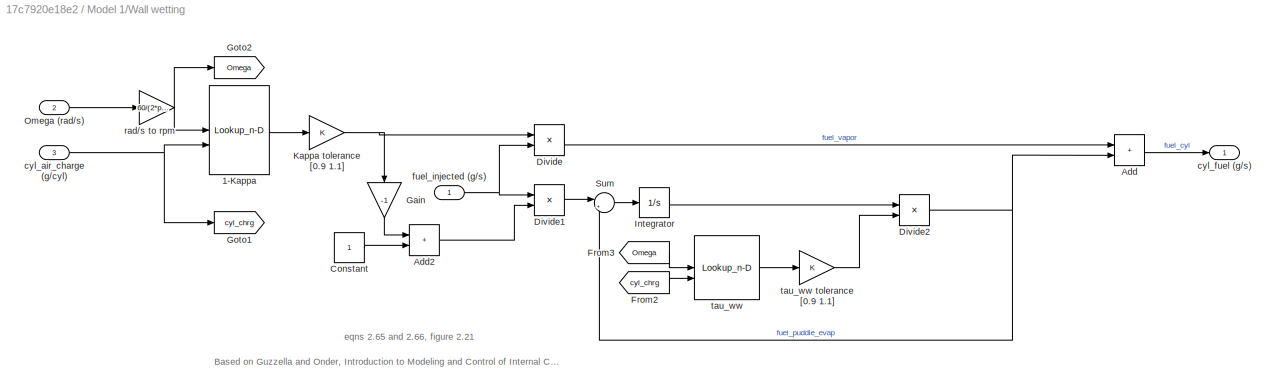
BLOCK [SubSystem] Model 1/Wall wetting
BLOCK [Lookup_n-D] Model 1/Wall wetting/1-Kappa
  BreakpointsForDimension1 = [1000,1500,2000,2500,3000]
  BreakpointsForDimension2 = [.1,.2,.3,.4]
  InputPortMap = u0,u1
  RndMeth = Simplest
  Table = reshape([0.8,.7,.7,.8,.9,.7,.66,.65,.73,.85,.66,.66,.63,.66,.8,.6,.6,.6,.6,.7],5,4)
  UseLastTableValue = on
BLOCK [Sum] Model 1/Wall wetting/Add
  IconShape = rectangular
BLOCK [Sum] Model 1/Wall wetting/Add2
  IconShape = rectangular
BLOCK [Constant] Model 1/Wall wetting/Constant
BLOCK [Product] Model 1/Wall wetting/Divide
  Inputs = **
BLOCK [Product] Model 1/Wall wetting/Divide1
  Inputs = **
BLOCK [Product] Model 1/Wall wetting/Divide2
  Inputs = */
BLOCK [From] Model 1/Wall wetting/From2
  GotoTag = cyl_chrg
BLOCK [From] Model 1/Wall wetting/From3
  GotoTag = Omega
BLOCK [Gain] Model 1/Wall wetting/Gain
  Gain = -1
  NameLocation = left
BLOCK [Goto] Model 1/Wall wetting/Goto1
  GotoTag = cyl_chrg
BLOCK [Goto] Model 1/Wall wetting/Goto2
  GotoTag = Omega
BLOCK [Integrator] Model 1/Wall wetting/Integrator
  InitialCondition = .0112
BLOCK [Gain] Model 1/Wall wetting/Kappa tolerance [0.9 1.1]
  NameLocation = top
BLOCK [Inport] Model 1/Wall wetting/Omega (rad//s)
  Port = 2
BLOCK [Sum] Model 1/Wall wetting/Sum
  Inputs = |+-
BLOCK [Inport] Model 1/Wall wetting/cyl_air_charge (g//cyl)
  Port = 3
BLOCK [Outport] Model 1/Wall wetting/cyl_fuel (g//s)
BLOCK [Inport] Model 1/Wall wetting/fuel_injected (g//s)
BLOCK [Gain] Model 1/Wall wetting/rad//s to rpm
  Gain = 60/(2*pi)
BLOCK [Lookup_n-D] Model 1/Wall wetting/tau_ww
  BreakpointsForDimension1 = [1000,1500,2000,2500,3000]
  BreakpointsForDimension2 = [0.1,0.2,0.3,0.4]
  InputPortMap = u0,u1
  RndMeth = Simplest
  Table = reshape([.4,.3,.35,.3,.2,.22,.22,.4,.35,.5,.20,.22,.5,.4,.35,.35,.3,.45,.5,.4],5,4)
  UseLastTableValue = on
BLOCK [Gain] Model 1/Wall wetting/tau_ww tolerance [0.9 1.1]
  NameLocation = top
BLOCK [Outport] Model 1/airbyfuel_ref
  Port = 2
BLOCK [Outport] Model 1/controller_mode
  Port = 3
BLOCK [Inport] Model 1/engine speed (rpm)
  AttributesFormatString = %<Description>
  Description = [900,1100]
  Port = 2
BLOCK [Gain] Model 1/fuel injector tolerance [0.95 1.05]
  Gain = fuel_inj_tol
  NameLocation = right
BLOCK [Saturate] Model 1/theta [0 90]
  LowerLimit = 0
  NameLocation = top
  UpperLimit = 90
BLOCK [Inport] Model 1/throttle input (deg)
  AttributesFormatString = %<Description>
  Description = [0, 81.2]
BLOCK [Reference] RL Agent  REF=rllib/RL Agent
  SourceBlock = rllib/RL Agent
  SourceType = RL Agent
BLOCK [SubSystem] Reward
BLOCK [Inport] Reward/AF
BLOCK [Inport] Reward/AFref
  Port = 2
BLOCK [Abs] Reward/Abs
  SaturateOnIntegerOverflow = off
BLOCK [Inport] Reward/Clock
  Port = 3
BLOCK [Constant] Reward/Constant
  Value = MuLimit
BLOCK [Constant] Reward/Constant1
  Value = 1000
BLOCK [Constant] Reward/Constant2
  Value = 0
BLOCK [Product] Reward/Divide
  Inputs = */
BLOCK [Gain] Reward/Gain
  Gain = -1
BLOCK [Gain] Reward/Gain1
  Gain = 100
BLOCK [Memory] Reward/Memory
  InitialCondition = 1000
BLOCK [MinMax] Reward/MinMax
  Inputs = 2
BLOCK [Outport] Reward/Neg Rob
BLOCK [Scope] Reward/Scope
  Commented = on
  Floating = off
  NumInputPorts = 6
  ScopeSpecificationString = Simulink.scopes.TimeScopeBlockCfg('CurrentConfiguration', extmgr.ConfigurationSet(extmgr.Configuration('Core','General UI',true),extmgr.Configuration('Core','Source UI',true),extmgr.Configuration('Sources','WiredSimulink',true,'DataLoggingVariableName','ScopeData2'),extmgr.Configuration('Visuals','Time Domain',true,'SerializedDisplays',{struct('MinYLimReal','14.02384','MaxYLimReal','16.32425','YLa...<+4901ch>
BLOCK [Sum] Reward/Sum
  IconShape = rectangular
  Inputs = +-
BLOCK [Sum] Reward/Sum1
  IconShape = rectangular
  Inputs = +-
BLOCK [Switch] Reward/Switch1
  InputSameDT = off
  SaturateOnIntegerOverflow = off
  Threshold = Ts
BLOCK [Switch] Reward/Switch2
  InputSameDT = off
  SaturateOnIntegerOverflow = off
  Threshold = Tf
BLOCK [Switch] Reward/Switch3
  InputSameDT = off
  SaturateOnIntegerOverflow = off
BLOCK [SubSystem] ScaleActions
BLOCK [Constant] ScaleActions/Constant
  NameLocation = right
  Value = 0.5*(actionUpperLimits+actionLowerLimits)
BLOCK [Gain] ScaleActions/Gain1
  Gain = 0.5*(actionUpperLimits-actionLowerLimits)
BLOCK [Inport] ScaleActions/Raw Action from NN
BLOCK [Outport] ScaleActions/Rescaled Action
BLOCK [Sum] ScaleActions/Sum1
  Inputs = |++
BLOCK [Scope] Scope2
  Floating = off
  NumInputPorts = 5
  ScopeSpecificationString = Simulink.scopes.TimeScopeBlockCfg('CurrentConfiguration', extmgr.ConfigurationSet(extmgr.Configuration('Core','General UI',true,'FigureColor',[0.501960784313725 0.501960784313725 0.501960784313725]),extmgr.Configuration('Core','Source UI',true),extmgr.Configuration('Sources','WiredSimulink',true,'DataLoggingVariableName','ScopeData1'),extmgr.Configuration('Visuals','Time Domain',true,'TimeAxisLabe...<+4726ch>
BLOCK [Terminator] Terminator
ANNOTATION (root): Verification Harness Layer for Fuel Control System Model
ANNOTATION Model 1: Based on Guzzella and Onder, Introduction to Modeling and Control of Internal Combustion Engine Systems
ANNOTATION Model 1: Based on Simulink Demo, <copyright redacted>
ANNOTATION Model 1: Fuel Control System Model
ANNOTATION Model 1: Powertrain Control Benchmark Model Toyota Technial Center 2014
ANNOTATION Model 1: This is an air-fuel control model, and an implementation of the 1st model that appears in "Powertrain Control Verification Benchmark", 2014 Hybrid Systems: Computation and Control, X. Jin, J. V. Deshmukh, J.Kapinski, K. Ueda, and K. Butts
ANNOTATION Model 1/AF_Controller: Cover Page
ANNOTATION Model 1/AF_Controller: Global Output
ANNOTATION Model 1/AF_Controller/fuel_controller: Global Inputs
ANNOTATION Model 1/AF_Controller/fuel_controller: Trigger Layer
ANNOTATION Model 1/AF_Controller/fuel_controller/fuel_controller_10ms: Fuel Controller
ANNOTATION Model 1/AF_Controller/fuel_controller/fuel_controller_10ms/air_estimation: Air Estimation for Fuel Control
ANNOTATION Model 1/AF_Controller/fuel_controller/fuel_controller_10ms/air_estimation: Pumping: -0.366 + 0.08979*u[1]*u[2] - 0.0337*u[2]*u[1]*u[1] + 0.0001*u[1]*u[2]*u[2]
ANNOTATION Model 1/AF_Controller/fuel_controller/fuel_controller_10ms/feedback_PI_controller: Feedback PI Controller
ANNOTATION Model 1/AF_Controller/fuel_controller/fuel_controller_10ms/feedforward_controller: Feedforward Controller
ANNOTATION Model 1/AF_Controller/fuel_controller/fuel_controller_mode_10ms: Controller Mode/Reference Selection
ANNOTATION Model 1/AF_Controller/fuel_controller/fuel_controller_mode_10ms/normal_mode_detection: NOTE: For first 10 seconds, controller uses only feedforward control to ignore the initialization issue.
ANNOTATION Model 1/AF_Controller/fuel_controller/fuel_controller_mode_10ms/normal_mode_detection: Normal Mode Detection (Cold Start to Normal)
ANNOTATION Model 1/AF_Controller/fuel_controller/fuel_controller_mode_10ms/power_mode_detection: Power Mode Detection
ANNOTATION Model 1/AF_Controller/fuel_controller/fuel_controller_mode_10ms/sensor_failure_detection: A/F Sensor Failuer Detection
ANNOTATION Model 1/Cylinder and Exhaust: Based on Guzzella and Onder, Introduction to Modeling and Control of Internal Combustion Engine Systems
ANNOTATION Model 1/Cylinder and Exhaust: eqn 2.96, figure 4.16
ANNOTATION Model 1/Cylinder and Exhaust: eqn 2.96, figure 4.16 (simp)
ANNOTATION Model 1/Intake Manifold: Based on Simulink Demo, <copyright redacted>
ANNOTATION Model 1/Intake Manifold: Intake Manifold Vacuum
ANNOTATION Model 1/Throttle: Based on Simulink Demo, <copyright redacted>
ANNOTATION Model 1/Throttle: Throttle Flow vs. Valve Angle and Pressure
ANNOTATION Model 1/Wall wetting: Based on Guzzella and Onder, Introduction to Modeling and Control of Internal Combustion Engine Systems
ANNOTATION Model 1/Wall wetting: eqns 2.65 and 2.66, figure 2.21
NET Clock:1 -> Compare To Constant:1, Reward:3
LINE Compare To Constant:1 -> RL Agent:3
NET Demux:1 -> Model 1:1, Scope2:3
NET Demux:2 -> Model 1:2, Scope2:4
LINE Generate Observations/AF:1 -> Generate Observations/Data Type Conversion2:1
LINE Generate Observations/AFref:1 -> Generate Observations/Data Type Conversion3:1
LINE Generate Observations/Constant:1 -> Generate Observations/Sum:2
LINE Generate Observations/Data Type Conversion2:1 -> Generate Observations/Mux1:1
LINE Generate Observations/Data Type Conversion3:1 -> Generate Observations/Mux1:2
LINE Generate Observations/Gain:1 -> Generate Observations/Sum:1
LINE Generate Observations/Mux1:1 -> Generate Observations/Gain:1
LINE Generate Observations/Sum:1 -> Generate Observations/Scaled States:1
LINE Generate Observations:1 -> RL Agent:1
LINE Memory:1 -> ScaleActions:1
NET Model 1/(rpm) to (rad//s):1 -> Model 1/Goto:1, Model 1/Intake Manifold:2
LINE Model 1/A//F Sensor Fault Injection:1 -> Model 1/Goto1:1
LINE Model 1/A//F sensor tolerance [0.99 1.01]:1 -> Model 1/Data Type Conversion3:1
LINE Model 1/AF_Controller/DataStoreRead1:1 -> Model 1/AF_Controller/controller_mode:1
LINE Model 1/AF_Controller/DataStoreRead2:1 -> Model 1/AF_Controller/airbyfuel_ref:1
LINE Model 1/AF_Controller/DataStoreRead:1 -> Model 1/AF_Controller/commanded_fuel_gps:1
LINE Model 1/AF_Controller/PulseGenerator_10ms:1 -> Model 1/AF_Controller/fuel_controller:2
LINE Model 1/AF_Controller/Pwon:1 -> Model 1/AF_Controller/fuel_controller:1
LINE Model 1/AF_Controller/airbyfuel_meas:1 -> Model 1/AF_Controller/fuel_controller:6
LINE Model 1/AF_Controller/engine_speed_radps:1 -> Model 1/AF_Controller/fuel_controller:3
LINE Model 1/AF_Controller/fuel_controller/airbyfuel_meas:1 -> Model 1/AF_Controller/fuel_controller/DataStoreWrite2:1
LINE Model 1/AF_Controller/fuel_controller/engine_speed:1 -> Model 1/AF_Controller/fuel_controller/DataStoreWrite:1
LINE Model 1/AF_Controller/fuel_controller/fuel_controller_10ms/Constant2:1 -> Model 1/AF_Controller/fuel_controller/fuel_controller_10ms/Sum1:1
LINE Model 1/AF_Controller/fuel_controller/fuel_controller_10ms/Constant3:1 -> Model 1/AF_Controller/fuel_controller/fuel_controller_10ms/Switch:1
LINE Model 1/AF_Controller/fuel_controller/fuel_controller_10ms/DataStoreRead1:1 -> Model 1/AF_Controller/fuel_controller/fuel_controller_10ms/air_estimation:2
LINE Model 1/AF_Controller/fuel_controller/fuel_controller_10ms/DataStoreRead2:1 -> Model 1/AF_Controller/fuel_controller/fuel_controller_10ms/feedback_PI_controller:2
NET Model 1/AF_Controller/fuel_controller/fuel_controller_10ms/DataStoreRead3:1 -> Model 1/AF_Controller/fuel_controller/fuel_controller_10ms/Logical Operator2:1, Model 1/AF_Controller/fuel_controller/fuel_controller_10ms/Switch:2
NET Model 1/AF_Controller/fuel_controller/fuel_controller_10ms/DataStoreRead4:1 -> Model 1/AF_Controller/fuel_controller/fuel_controller_10ms/feedback_PI_controller:1, Model 1/AF_Controller/fuel_controller/fuel_controller_10ms/feedforward_controller:2
LINE Model 1/AF_Controller/fuel_controller/fuel_controller_10ms/DataStoreRead:1 -> Model 1/AF_Controller/fuel_controller/fuel_controller_10ms/air_estimation:1
LINE Model 1/AF_Controller/fuel_controller/fuel_controller_10ms/Logical Operator2:1 -> Model 1/AF_Controller/fuel_controller/fuel_controller_10ms/feedback_PI_controller:enable
LINE Model 1/AF_Controller/fuel_controller/fuel_controller_10ms/Prod1:1 -> Model 1/AF_Controller/fuel_controller/fuel_controller_10ms/fuel_saturation:1
LINE Model 1/AF_Controller/fuel_controller/fuel_controller_10ms/Sum1:1 -> Model 1/AF_Controller/fuel_controller/fuel_controller_10ms/fb_fuel_saturation:1
LINE Model 1/AF_Controller/fuel_controller/fuel_controller_10ms/Switch:1 -> Model 1/AF_Controller/fuel_controller/fuel_controller_10ms/Prod1:2
LINE Model 1/AF_Controller/fuel_controller/fuel_controller_10ms/air_estimation/Constant1:1 -> Model 1/AF_Controller/fuel_controller/fuel_controller_10ms/air_estimation/Prod1:2
LINE Model 1/AF_Controller/fuel_controller/fuel_controller_10ms/air_estimation/Constant2:1 -> Model 1/AF_Controller/fuel_controller/fuel_controller_10ms/air_estimation/Sum3:1
LINE Model 1/AF_Controller/fuel_controller/fuel_controller_10ms/air_estimation/Constant3:1 -> Model 1/AF_Controller/fuel_controller/fuel_controller_10ms/air_estimation/Prod2:3
LINE Model 1/AF_Controller/fuel_controller/fuel_controller_10ms/air_estimation/Constant4:1 -> Model 1/AF_Controller/fuel_controller/fuel_controller_10ms/air_estimation/Prod3:4
LINE Model 1/AF_Controller/fuel_controller/fuel_controller_10ms/air_estimation/Constant5:1 -> Model 1/AF_Controller/fuel_controller/fuel_controller_10ms/air_estimation/Prod4:4
LINE Model 1/AF_Controller/fuel_controller/fuel_controller_10ms/air_estimation/Gain:1 -> Model 1/AF_Controller/fuel_controller/fuel_controller_10ms/air_estimation/Prod1:1
LINE Model 1/AF_Controller/fuel_controller/fuel_controller_10ms/air_estimation/Prod1:1 -> Model 1/AF_Controller/fuel_controller/fuel_controller_10ms/air_estimation/Sum2:1
LINE Model 1/AF_Controller/fuel_controller/fuel_controller_10ms/air_estimation/Prod2:1 -> Model 1/AF_Controller/fuel_controller/fuel_controller_10ms/air_estimation/Sum3:2
LINE Model 1/AF_Controller/fuel_controller/fuel_controller_10ms/air_estimation/Prod3:1 -> Model 1/AF_Controller/fuel_controller/fuel_controller_10ms/air_estimation/Sum3:3
LINE Model 1/AF_Controller/fuel_controller/fuel_controller_10ms/air_estimation/Prod4:1 -> Model 1/AF_Controller/fuel_controller/fuel_controller_10ms/air_estimation/Sum3:4
LINE Model 1/AF_Controller/fuel_controller/fuel_controller_10ms/air_estimation/Sum1:1 -> Model 1/AF_Controller/fuel_controller/fuel_controller_10ms/air_estimation/Gain:1
LINE Model 1/AF_Controller/fuel_controller/fuel_controller_10ms/air_estimation/Sum2:1 -> Model 1/AF_Controller/fuel_controller/fuel_controller_10ms/air_estimation/UnitDelay1:1
NET Model 1/AF_Controller/fuel_controller/fuel_controller_10ms/air_estimation/Sum3:1 -> Model 1/AF_Controller/fuel_controller/fuel_controller_10ms/air_estimation/Sum1:2, Model 1/AF_Controller/fuel_controller/fuel_controller_10ms/air_estimation/estimated_cyl_air_flow_gps:1
NET Model 1/AF_Controller/fuel_controller/fuel_controller_10ms/air_estimation/UnitDelay1:1 -> Model 1/AF_Controller/fuel_controller/fuel_controller_10ms/air_estimation/Prod2:1, Model 1/AF_Controller/fuel_controller/fuel_controller_10ms/air_estimation/Prod3:1, Model 1/AF_Controller/fuel_controller/fuel_controller_10ms/air_estimation/Prod3:2, Model 1/AF_Controller/fuel_controller/fuel_controller_10ms/air_estimation/Prod4:3, Model 1/AF_Controller/fuel_controller/fuel_controller_10ms/air_estimation/Sum2:2
NET Model 1/AF_Controller/fuel_controller/fuel_controller_10ms/air_estimation/engine_speed_radps:1 -> Model 1/AF_Controller/fuel_controller/fuel_controller_10ms/air_estimation/Prod2:2, Model 1/AF_Controller/fuel_controller/fuel_controller_10ms/air_estimation/Prod3:3, Model 1/AF_Controller/fuel_controller/fuel_controller_10ms/air_estimation/Prod4:1, Model 1/AF_Controller/fuel_controller/fuel_controller_10ms/air_estimation/Prod4:2
LINE Model 1/AF_Controller/fuel_controller/fuel_controller_10ms/air_estimation/throttle_flow_gps:1 -> Model 1/AF_Controller/fuel_controller/fuel_controller_10ms/air_estimation/Sum1:1
LINE Model 1/AF_Controller/fuel_controller/fuel_controller_10ms/air_estimation:1 -> Model 1/AF_Controller/fuel_controller/fuel_controller_10ms/feedforward_controller:1
LINE Model 1/AF_Controller/fuel_controller/fuel_controller_10ms/fb_fuel_saturation:1 -> Model 1/AF_Controller/fuel_controller/fuel_controller_10ms/Switch:3
LINE Model 1/AF_Controller/fuel_controller/fuel_controller_10ms/feedback_PI_controller/Constant1:1 -> Model 1/AF_Controller/fuel_controller/fuel_controller_10ms/feedback_PI_controller/Prod1:2
LINE Model 1/AF_Controller/fuel_controller/fuel_controller_10ms/feedback_PI_controller/Gain1:1 -> Model 1/AF_Controller/fuel_controller/fuel_controller_10ms/feedback_PI_controller/Prod1:1
LINE Model 1/AF_Controller/fuel_controller/fuel_controller_10ms/feedback_PI_controller/Gain:1 -> Model 1/AF_Controller/fuel_controller/fuel_controller_10ms/feedback_PI_controller/Sum3:1
LINE Model 1/AF_Controller/fuel_controller/fuel_controller_10ms/feedback_PI_controller/Prod1:1 -> Model 1/AF_Controller/fuel_controller/fuel_controller_10ms/feedback_PI_controller/Sum2:1
NET Model 1/AF_Controller/fuel_controller/fuel_controller_10ms/feedback_PI_controller/Sum1:1 -> Model 1/AF_Controller/fuel_controller/fuel_controller_10ms/feedback_PI_controller/Gain1:1, Model 1/AF_Controller/fuel_controller/fuel_controller_10ms/feedback_PI_controller/Gain:1
NET Model 1/AF_Controller/fuel_controller/fuel_controller_10ms/feedback_PI_controller/Sum2:1 -> Model 1/AF_Controller/fuel_controller/fuel_controller_10ms/feedback_PI_controller/Sum3:2, Model 1/AF_Controller/fuel_controller/fuel_controller_10ms/feedback_PI_controller/UnitDelay1:1
LINE Model 1/AF_Controller/fuel_controller/fuel_controller_10ms/feedback_PI_controller/Sum3:1 -> Model 1/AF_Controller/fuel_controller/fuel_controller_10ms/feedback_PI_controller/closed_loop_fuel_trim:1
LINE Model 1/AF_Controller/fuel_controller/fuel_controller_10ms/feedback_PI_controller/UnitDelay1:1 -> Model 1/AF_Controller/fuel_controller/fuel_controller_10ms/feedback_PI_controller/Sum2:2
LINE Model 1/AF_Controller/fuel_controller/fuel_controller_10ms/feedback_PI_controller/airbyfuel_meas:1 -> Model 1/AF_Controller/fuel_controller/fuel_controller_10ms/feedback_PI_controller/Sum1:2
LINE Model 1/AF_Controller/fuel_controller/fuel_controller_10ms/feedback_PI_controller/airbyfuel_reference:1 -> Model 1/AF_Controller/fuel_controller/fuel_controller_10ms/feedback_PI_controller/Sum1:1
LINE Model 1/AF_Controller/fuel_controller/fuel_controller_10ms/feedback_PI_controller:1 -> Model 1/AF_Controller/fuel_controller/fuel_controller_10ms/Sum1:2
LINE Model 1/AF_Controller/fuel_controller/fuel_controller_10ms/feedforward_controller/Product:1 -> Model 1/AF_Controller/fuel_controller/fuel_controller_10ms/feedforward_controller/desired_fuel_mass_gps:1
LINE Model 1/AF_Controller/fuel_controller/fuel_controller_10ms/feedforward_controller/airbyfuel_reference:1 -> Model 1/AF_Controller/fuel_controller/fuel_controller_10ms/feedforward_controller/Product:2
LINE Model 1/AF_Controller/fuel_controller/fuel_controller_10ms/feedforward_controller/estimated_cyl_air_flow_gps:1 -> Model 1/AF_Controller/fuel_controller/fuel_controller_10ms/feedforward_controller/Product:1
LINE Model 1/AF_Controller/fuel_controller/fuel_controller_10ms/feedforward_controller:1 -> Model 1/AF_Controller/fuel_controller/fuel_controller_10ms/Prod1:1
LINE Model 1/AF_Controller/fuel_controller/fuel_controller_10ms/fuel_saturation:1 -> Model 1/AF_Controller/fuel_controller/fuel_controller_10ms/DataStoreWrite:1
LINE Model 1/AF_Controller/fuel_controller/fuel_controller_mode_10ms/DataStoreRead2:1 -> Model 1/AF_Controller/fuel_controller/fuel_controller_mode_10ms/sensor_failure_detection:1
LINE Model 1/AF_Controller/fuel_controller/fuel_controller_mode_10ms/DataStoreRead4:1 -> Model 1/AF_Controller/fuel_controller/fuel_controller_mode_10ms/power_mode_detection:1
LINE Model 1/AF_Controller/fuel_controller/fuel_controller_mode_10ms/Logical Operator1:1 -> Model 1/AF_Controller/fuel_controller/fuel_controller_mode_10ms/DataStoreWrite:1
LINE Model 1/AF_Controller/fuel_controller/fuel_controller_mode_10ms/Logical Operator2:1 -> Model 1/AF_Controller/fuel_controller/fuel_controller_mode_10ms/Logical Operator1:2
LINE Model 1/AF_Controller/fuel_controller/fuel_controller_mode_10ms/Logical Operator3:1 -> Model 1/AF_Controller/fuel_controller/fuel_controller_mode_10ms/Switch:2
LINE Model 1/AF_Controller/fuel_controller/fuel_controller_mode_10ms/Switch:1 -> Model 1/AF_Controller/fuel_controller/fuel_controller_mode_10ms/DataStoreWrite1:1
LINE Model 1/AF_Controller/fuel_controller/fuel_controller_mode_10ms/airbyfuel_reference:1 -> Model 1/AF_Controller/fuel_controller/fuel_controller_mode_10ms/Switch:3
LINE Model 1/AF_Controller/fuel_controller/fuel_controller_mode_10ms/airbyfuel_reference_power:1 -> Model 1/AF_Controller/fuel_controller/fuel_controller_mode_10ms/Switch:1
NET Model 1/AF_Controller/fuel_controller/fuel_controller_mode_10ms/normal_mode_detection/Logical Operator:1 -> Model 1/AF_Controller/fuel_controller/fuel_controller_mode_10ms/normal_mode_detection/Unit Delay1:1, Model 1/AF_Controller/fuel_controller/fuel_controller_mode_10ms/normal_mode_detection/normal_on:1
LINE Model 1/AF_Controller/fuel_controller/fuel_controller_mode_10ms/normal_mode_detection/Relational Operator:1 -> Model 1/AF_Controller/fuel_controller/fuel_controller_mode_10ms/normal_mode_detection/Logical Operator:1
NET Model 1/AF_Controller/fuel_controller/fuel_controller_mode_10ms/normal_mode_detection/Sum:1 -> Model 1/AF_Controller/fuel_controller/fuel_controller_mode_10ms/normal_mode_detection/Relational Operator:1, Model 1/AF_Controller/fuel_controller/fuel_controller_mode_10ms/normal_mode_detection/Unit Delay2:1
LINE Model 1/AF_Controller/fuel_controller/fuel_controller_mode_10ms/normal_mode_detection/Unit Delay1:1 -> Model 1/AF_Controller/fuel_controller/fuel_controller_mode_10ms/normal_mode_detection/Logical Operator:2
LINE Model 1/AF_Controller/fuel_controller/fuel_controller_mode_10ms/normal_mode_detection/Unit Delay2:1 -> Model 1/AF_Controller/fuel_controller/fuel_controller_mode_10ms/normal_mode_detection/Sum:1
LINE Model 1/AF_Controller/fuel_controller/fuel_controller_mode_10ms/normal_mode_detection/normal_mode_start_sec:1 -> Model 1/AF_Controller/fuel_controller/fuel_controller_mode_10ms/normal_mode_detection/Relational Operator:2
LINE Model 1/AF_Controller/fuel_controller/fuel_controller_mode_10ms/normal_mode_detection/sampling_sec:1 -> Model 1/AF_Controller/fuel_controller/fuel_controller_mode_10ms/normal_mode_detection/Sum:2
NET Model 1/AF_Controller/fuel_controller/fuel_controller_mode_10ms/normal_mode_detection:1 -> Model 1/AF_Controller/fuel_controller/fuel_controller_mode_10ms/Logical Operator2:1, Model 1/AF_Controller/fuel_controller/fuel_controller_mode_10ms/Logical Operator3:1
LINE Model 1/AF_Controller/fuel_controller/fuel_controller_mode_10ms/power_mode_detection/Constant1:1 -> Model 1/AF_Controller/fuel_controller/fuel_controller_mode_10ms/power_mode_detection/Sum:2
NET Model 1/AF_Controller/fuel_controller/fuel_controller_mode_10ms/power_mode_detection/Constant:1 -> Model 1/AF_Controller/fuel_controller/fuel_controller_mode_10ms/power_mode_detection/Sum:1, Model 1/AF_Controller/fuel_controller/fuel_controller_mode_10ms/power_mode_detection/Switch:1
NET Model 1/AF_Controller/fuel_controller/fuel_controller_mode_10ms/power_mode_detection/Relational Operator1:1 -> Model 1/AF_Controller/fuel_controller/fuel_controller_mode_10ms/power_mode_detection/Unit Delay1:1, Model 1/AF_Controller/fuel_controller/fuel_controller_mode_10ms/power_mode_detection/power_on:1
LINE Model 1/AF_Controller/fuel_controller/fuel_controller_mode_10ms/power_mode_detection/Sum:1 -> Model 1/AF_Controller/fuel_controller/fuel_controller_mode_10ms/power_mode_detection/Switch:3
LINE Model 1/AF_Controller/fuel_controller/fuel_controller_mode_10ms/power_mode_detection/Switch:1 -> Model 1/AF_Controller/fuel_controller/fuel_controller_mode_10ms/power_mode_detection/Relational Operator1:2
LINE Model 1/AF_Controller/fuel_controller/fuel_controller_mode_10ms/power_mode_detection/Unit Delay1:1 -> Model 1/AF_Controller/fuel_controller/fuel_controller_mode_10ms/power_mode_detection/Switch:2
LINE Model 1/AF_Controller/fuel_controller/fuel_controller_mode_10ms/power_mode_detection/throttle_angle:1 -> Model 1/AF_Controller/fuel_controller/fuel_controller_mode_10ms/power_mode_detection/Relational Operator1:1
NET Model 1/AF_Controller/fuel_controller/fuel_controller_mode_10ms/power_mode_detection:1 -> Model 1/AF_Controller/fuel_controller/fuel_controller_mode_10ms/Logical Operator1:3, Model 1/AF_Controller/fuel_controller/fuel_controller_mode_10ms/Logical Operator3:2
NET Model 1/AF_Controller/fuel_controller/fuel_controller_mode_10ms/sensor_failure_detection/Logical Operator:1 -> Model 1/AF_Controller/fuel_controller/fuel_controller_mode_10ms/sensor_failure_detection/Unit Delay:1, Model 1/AF_Controller/fuel_controller/fuel_controller_mode_10ms/sensor_failure_detection/fail_on:1
LINE Model 1/AF_Controller/fuel_controller/fuel_controller_mode_10ms/sensor_failure_detection/Relational Operator:1 -> Model 1/AF_Controller/fuel_controller/fuel_controller_mode_10ms/sensor_failure_detection/Logical Operator:1
LINE Model 1/AF_Controller/fuel_controller/fuel_controller_mode_10ms/sensor_failure_detection/Unit Delay:1 -> Model 1/AF_Controller/fuel_controller/fuel_controller_mode_10ms/sensor_failure_detection/Logical Operator:2
LINE Model 1/AF_Controller/fuel_controller/fuel_controller_mode_10ms/sensor_failure_detection/airbyfuel_meas:1 -> Model 1/AF_Controller/fuel_controller/fuel_controller_mode_10ms/sensor_failure_detection/Relational Operator:1
LINE Model 1/AF_Controller/fuel_controller/fuel_controller_mode_10ms/sensor_failure_detection/threshold:1 -> Model 1/AF_Controller/fuel_controller/fuel_controller_mode_10ms/sensor_failure_detection/Relational Operator:2
LINE Model 1/AF_Controller/fuel_controller/fuel_controller_mode_10ms/sensor_failure_detection:1 -> Model 1/AF_Controller/fuel_controller/fuel_controller_mode_10ms/Logical Operator1:1
LINE Model 1/AF_Controller/fuel_controller/fuel_controller_pwon/Constant1:1 -> Model 1/AF_Controller/fuel_controller/fuel_controller_pwon/Data Type Conversion:1
LINE Model 1/AF_Controller/fuel_controller/fuel_controller_pwon/Constant2:1 -> Model 1/AF_Controller/fuel_controller/fuel_controller_pwon/DataStoreWrite:1
LINE Model 1/AF_Controller/fuel_controller/fuel_controller_pwon/Constant3:1 -> Model 1/AF_Controller/fuel_controller/fuel_controller_pwon/DataStoreWrite2:1
LINE Model 1/AF_Controller/fuel_controller/fuel_controller_pwon/Data Type Conversion:1 -> Model 1/AF_Controller/fuel_controller/fuel_controller_pwon/DataStoreWrite1:1
LINE Model 1/AF_Controller/fuel_controller/throttle_angle_deg:1 -> Model 1/AF_Controller/fuel_controller/DataStoreWrite3:1
LINE Model 1/AF_Controller/fuel_controller/throttle_flow:1 -> Model 1/AF_Controller/fuel_controller/DataStoreWrite1:1
NET Model 1/AF_Controller/fuel_controller/trigger_10ms:1 -> Model 1/AF_Controller/fuel_controller/fuel_controller_10ms:trigger, Model 1/AF_Controller/fuel_controller/fuel_controller_mode_10ms:trigger
LINE Model 1/AF_Controller/fuel_controller/trigger_pwon:1 -> Model 1/AF_Controller/fuel_controller/fuel_controller_pwon:trigger
LINE Model 1/AF_Controller/throttle_angle_deg:1 -> Model 1/AF_Controller/fuel_controller:4
LINE Model 1/AF_Controller/throttle_flow_gps:1 -> Model 1/AF_Controller/fuel_controller:5
LINE Model 1/AF_Controller:1 -> Model 1/Data Type Conversion:1
LINE Model 1/AF_Controller:2 -> Model 1/controller_mode:1
LINE Model 1/AF_Controller:3 -> Model 1/airbyfuel_ref:1
LINE Model 1/Atmospheric Pressure (bar):1 -> Model 1/Throttle:3
LINE Model 1/Base opening angle:1 -> Model 1/Sum:2
LINE Model 1/Cylinder and Exhaust/A//F_sensor/A//F_sensor:1 -> Model 1/Cylinder and Exhaust/A//F_sensor/Out:1
LINE Model 1/Cylinder and Exhaust/A//F_sensor/Filter/Gain:1 -> Model 1/Cylinder and Exhaust/A//F_sensor/Filter/Integrator:1
LINE Model 1/Cylinder and Exhaust/A//F_sensor/Filter/In:1 -> Model 1/Cylinder and Exhaust/A//F_sensor/Filter/Sum:1
NET Model 1/Cylinder and Exhaust/A//F_sensor/Filter/Integrator:1 -> Model 1/Cylinder and Exhaust/A//F_sensor/Filter/Out:1, Model 1/Cylinder and Exhaust/A//F_sensor/Filter/Sum:2
LINE Model 1/Cylinder and Exhaust/A//F_sensor/Filter/Sum:1 -> Model 1/Cylinder and Exhaust/A//F_sensor/Filter/Gain:1
LINE Model 1/Cylinder and Exhaust/A//F_sensor/Filter:1 -> Model 1/Cylinder and Exhaust/A//F_sensor/A//F_sensor:1
LINE Model 1/Cylinder and Exhaust/A//F_sensor/In:1 -> Model 1/Cylinder and Exhaust/A//F_sensor/Filter:1
NET Model 1/Cylinder and Exhaust/A//F_sensor:1 -> Model 1/Cylinder and Exhaust/Switch:3, Model 1/Cylinder and Exhaust/airbyfuel_mon :1
LINE Model 1/Cylinder and Exhaust/Divide:1 -> Model 1/Cylinder and Exhaust/fuel system transport delay:1
LINE Model 1/Cylinder and Exhaust/FaultySensorOutput:1 -> Model 1/Cylinder and Exhaust/Switch:1
LINE Model 1/Cylinder and Exhaust/Filter/Gain1:1 -> Model 1/Cylinder and Exhaust/Filter/Integrator:1
NET Model 1/Cylinder and Exhaust/Filter/Integrator:1 -> Model 1/Cylinder and Exhaust/Filter/Sum:2, Model 1/Cylinder and Exhaust/Filter/out:1
LINE Model 1/Cylinder and Exhaust/Filter/Sum:1 -> Model 1/Cylinder and Exhaust/Filter/Gain1:1
LINE Model 1/Cylinder and Exhaust/Filter/in:1 -> Model 1/Cylinder and Exhaust/Filter/Sum:1
LINE Model 1/Cylinder and Exhaust/Filter:1 -> Model 1/Cylinder and Exhaust/A//F_sensor:1
LINE Model 1/Cylinder and Exhaust/From1:1 -> Model 1/Cylinder and Exhaust/Product1:2
LINE Model 1/Cylinder and Exhaust/From3:1 -> Model 1/Cylinder and Exhaust/delay (s):2
NET Model 1/Cylinder and Exhaust/Gain:1 -> Model 1/Cylinder and Exhaust/Goto:1, Model 1/Cylinder and Exhaust/cyl_air_charge (g//cyl):1
NET Model 1/Cylinder and Exhaust/Omega (rad//s):1 -> Model 1/Cylinder and Exhaust/Goto1:1, Model 1/Cylinder and Exhaust/rad//s to rpm:1
LINE Model 1/Cylinder and Exhaust/Product1:1 -> Model 1/Cylinder and Exhaust/Gain:1
LINE Model 1/Cylinder and Exhaust/SensorFault:1 -> Model 1/Cylinder and Exhaust/Switch:2
LINE Model 1/Cylinder and Exhaust/Switch:1 -> Model 1/Cylinder and Exhaust/airbyfue_meas:1
NET Model 1/Cylinder and Exhaust/cyl_air (g//s):1 -> Model 1/Cylinder and Exhaust/Divide:1, Model 1/Cylinder and Exhaust/Product1:1
LINE Model 1/Cylinder and Exhaust/cyl_fuel (g//s):1 -> Model 1/Cylinder and Exhaust/Divide:2
LINE Model 1/Cylinder and Exhaust/delay (s):1 -> Model 1/Cylinder and Exhaust/fuel system transport delay:2
LINE Model 1/Cylinder and Exhaust/fuel system transport delay:1 -> Model 1/Cylinder and Exhaust/Filter:1
LINE Model 1/Cylinder and Exhaust/rad//s to rpm:1 -> Model 1/Cylinder and Exhaust/delay (s):1
LINE Model 1/Cylinder and Exhaust:1 -> Model 1/A//F sensor tolerance [0.99 1.01]:1
LINE Model 1/Cylinder and Exhaust:2 -> Model 1/Wall wetting:3
NET Model 1/Cylinder and Exhaust:3 -> Model 1/A//F:1, Model 1/Monitor:1
LINE Model 1/Data Type Conversion1:1 -> Model 1/AF_Controller:1
LINE Model 1/Data Type Conversion2:1 -> Model 1/AF_Controller:3
LINE Model 1/Data Type Conversion3:1 -> Model 1/AF_Controller:4
LINE Model 1/Data Type Conversion4:1 -> Model 1/AF_Controller:2
LINE Model 1/Data Type Conversion:1 -> Model 1/fuel injector tolerance [0.95 1.05]:1
LINE Model 1/Engine Speed [900 1100]:1 -> Model 1/(rpm) to (rad//s):1
LINE Model 1/From1:1 -> Model 1/Wall wetting:2
LINE Model 1/From2:1 -> Model 1/Data Type Conversion1:1
LINE Model 1/From3:1 -> Model 1/Cylinder and Exhaust:4
LINE Model 1/From4:1 -> Model 1/Cylinder and Exhaust:3
LINE Model 1/From5:1 -> Model 1/MAF sensor tolerance [0.95 1.05]:1
LINE Model 1/From6:1 -> Model 1/Data Type Conversion4:1
LINE Model 1/From7:1 -> Model 1/Monitor:2
LINE Model 1/From8:1 -> Model 1/Monitor:3
NET Model 1/Intake Manifold/Gain2:1 -> Model 1/Intake Manifold/Sum:2, Model 1/Intake Manifold/mdot to Cylinder (g//s):1
LINE Model 1/Intake Manifold/Mux:1 -> Model 1/Intake Manifold/Pumping:1
LINE Model 1/Intake Manifold/Omega (rad//s):1 -> Model 1/Intake Manifold/Mux:2
LINE Model 1/Intake Manifold/Pumping:1 -> Model 1/Intake Manifold/Gain2:1
LINE Model 1/Intake Manifold/RT//Vm:1 -> Model 1/Intake Manifold/p0 = 0.543 (bar):1
LINE Model 1/Intake Manifold/Sum:1 -> Model 1/Intake Manifold/RT//Vm:1
LINE Model 1/Intake Manifold/mdot Input (g//s):1 -> Model 1/Intake Manifold/Sum:1
NET Model 1/Intake Manifold/p0 = 0.543 (bar):1 -> Model 1/Intake Manifold/Manifold Pressure, Pm (bar):1, Model 1/Intake Manifold/Mux:1
LINE Model 1/Intake Manifold:1 -> Model 1/Cylinder and Exhaust:1
LINE Model 1/Intake Manifold:2 -> Model 1/Throttle:2
LINE Model 1/MAF sensor tolerance [0.95 1.05]:1 -> Model 1/Data Type Conversion2:1
LINE Model 1/Sum:1 -> Model 1/theta [0 90]:1
LINE Model 1/Throttle delay:1 -> Model 1/Sum:1
NET Model 1/Throttle/Atmospheric Pressure, Pa (bar) :1 -> Model 1/Throttle/Product1:2, Model 1/Throttle/Product2:2, Model 1/Throttle/Sum:1
NET Model 1/Throttle/Manifold Pressure, Pm (bar):1 -> Model 1/Throttle/Product1:1, Model 1/Throttle/Product2:1, Model 1/Throttle/Sum:2
NET Model 1/Throttle/MinMax:1 -> Model 1/Throttle/Switch:2, Model 1/Throttle/g(pratio):1
LINE Model 1/Throttle/Product1:1 -> Model 1/Throttle/MinMax:1
LINE Model 1/Throttle/Product2:1 -> Model 1/Throttle/MinMax:2
LINE Model 1/Throttle/Product:1 -> Model 1/Throttle/Throttle Flow, mdot (g//s):1
LINE Model 1/Throttle/Sonic Flow :1 -> Model 1/Throttle/Switch:3
LINE Model 1/Throttle/Sum:1 -> Model 1/Throttle/flow direction:1
LINE Model 1/Throttle/Switch:1 -> Model 1/Throttle/Product:2
LINE Model 1/Throttle/Throttle Angle, theta (deg):1 -> Model 1/Throttle/f(theta):1
LINE Model 1/Throttle/f(theta):1 -> Model 1/Throttle/Product:1
LINE Model 1/Throttle/flow direction:1 -> Model 1/Throttle/Product:3
LINE Model 1/Throttle/g(pratio):1 -> Model 1/Throttle/Switch:1
NET Model 1/Throttle:1 -> Model 1/Goto2:1, Model 1/Intake Manifold:1
LINE Model 1/Wall wetting/1-Kappa:1 -> Model 1/Wall wetting/Kappa tolerance [0.9 1.1]:1
LINE Model 1/Wall wetting/Add2:1 -> Model 1/Wall wetting/Divide1:2
LINE Model 1/Wall wetting/Add:1 -> Model 1/Wall wetting/cyl_fuel (g//s):1
LINE Model 1/Wall wetting/Constant:1 -> Model 1/Wall wetting/Add2:2
LINE Model 1/Wall wetting/Divide1:1 -> Model 1/Wall wetting/Sum:1
NET Model 1/Wall wetting/Divide2:1 -> Model 1/Wall wetting/Add:2, Model 1/Wall wetting/Sum:2
LINE Model 1/Wall wetting/Divide:1 -> Model 1/Wall wetting/Add:1
LINE Model 1/Wall wetting/From2:1 -> Model 1/Wall wetting/tau_ww:2
LINE Model 1/Wall wetting/From3:1 -> Model 1/Wall wetting/tau_ww:1
LINE Model 1/Wall wetting/Gain:1 -> Model 1/Wall wetting/Add2:1
LINE Model 1/Wall wetting/Integrator:1 -> Model 1/Wall wetting/Divide2:1
NET Model 1/Wall wetting/Kappa tolerance [0.9 1.1]:1 -> Model 1/Wall wetting/Divide:1, Model 1/Wall wetting/Gain:1
LINE Model 1/Wall wetting/Omega (rad//s):1 -> Model 1/Wall wetting/rad//s to rpm:1
LINE Model 1/Wall wetting/Sum:1 -> Model 1/Wall wetting/Integrator:1
NET Model 1/Wall wetting/cyl_air_charge (g//cyl):1 -> Model 1/Wall wetting/1-Kappa:2, Model 1/Wall wetting/Goto1:1
NET Model 1/Wall wetting/fuel_injected (g//s):1 -> Model 1/Wall wetting/Divide1:1, Model 1/Wall wetting/Divide:2
NET Model 1/Wall wetting/rad//s to rpm:1 -> Model 1/Wall wetting/1-Kappa:1, Model 1/Wall wetting/Goto2:1
LINE Model 1/Wall wetting/tau_ww tolerance [0.9 1.1]:1 -> Model 1/Wall wetting/Divide2:2
LINE Model 1/Wall wetting/tau_ww:1 -> Model 1/Wall wetting/tau_ww tolerance [0.9 1.1]:1
LINE Model 1/Wall wetting:1 -> Model 1/Cylinder and Exhaust:2
NET Model 1/engine speed (rpm):1 -> Model 1/Engine Speed [900 1100]:1, Model 1/Goto4:1
LINE Model 1/fuel injector tolerance [0.95 1.05]:1 -> Model 1/Wall wetting:1
NET Model 1/theta [0 90]:1 -> Model 1/Goto3:1, Model 1/Throttle:1
LINE Model 1/throttle input (deg):1 -> Model 1/Throttle delay:1
NET Model 1:1 -> Generate Observations:1, Reward:1, Scope2:1
NET Model 1:2 -> Generate Observations:2, Reward:2, Scope2:2
LINE Model 1:3 -> Terminator:1
LINE RL Agent:1 -> Memory:1
NET Reward/AF:1 -> Reward/Scope:1, Reward/Sum:1
NET Reward/AFref:1 -> Reward/Divide:2, Reward/Scope:2, Reward/Sum:2
LINE Reward/Abs:1 -> Reward/Sum1:2
NET Reward/Clock:1 -> Reward/Switch1:2, Reward/Switch2:2
LINE Reward/Constant1:1 -> Reward/Switch1:3
LINE Reward/Constant2:1 -> Reward/Switch2:3
LINE Reward/Constant:1 -> Reward/Sum1:1
LINE Reward/Divide:1 -> Reward/Abs:1
LINE Reward/Gain1:1 -> Reward/Switch3:1
NET Reward/Gain:1 -> Reward/Scope:5, Reward/Switch2:1
NET Reward/Memory:1 -> Reward/Gain:1, Reward/MinMax:2
LINE Reward/MinMax:1 -> Reward/Memory:1
NET Reward/Sum1:1 -> Reward/Scope:3, Reward/Switch1:1
LINE Reward/Sum:1 -> Reward/Divide:1
NET Reward/Switch1:1 -> Reward/MinMax:1, Reward/Scope:4
NET Reward/Switch2:1 -> Reward/Gain1:1, Reward/Scope:6, Reward/Switch3:2, Reward/Switch3:3
LINE Reward/Switch3:1 -> Reward/Neg Rob:1
NET Reward:1 -> RL Agent:2, Scope2:5
LINE ScaleActions/Constant:1 -> ScaleActions/Sum1:2
LINE ScaleActions/Gain1:1 -> ScaleActions/Sum1:1
LINE ScaleActions/Raw Action from NN:1 -> ScaleActions/Gain1:1
LINE ScaleActions/Sum1:1 -> ScaleActions/Rescaled Action:1
LINE ScaleActions:1 -> Demux:1
note: NET lines group one-source signal fan-out (src -> all destinations, sorted); 1:1 wires keep LINE
